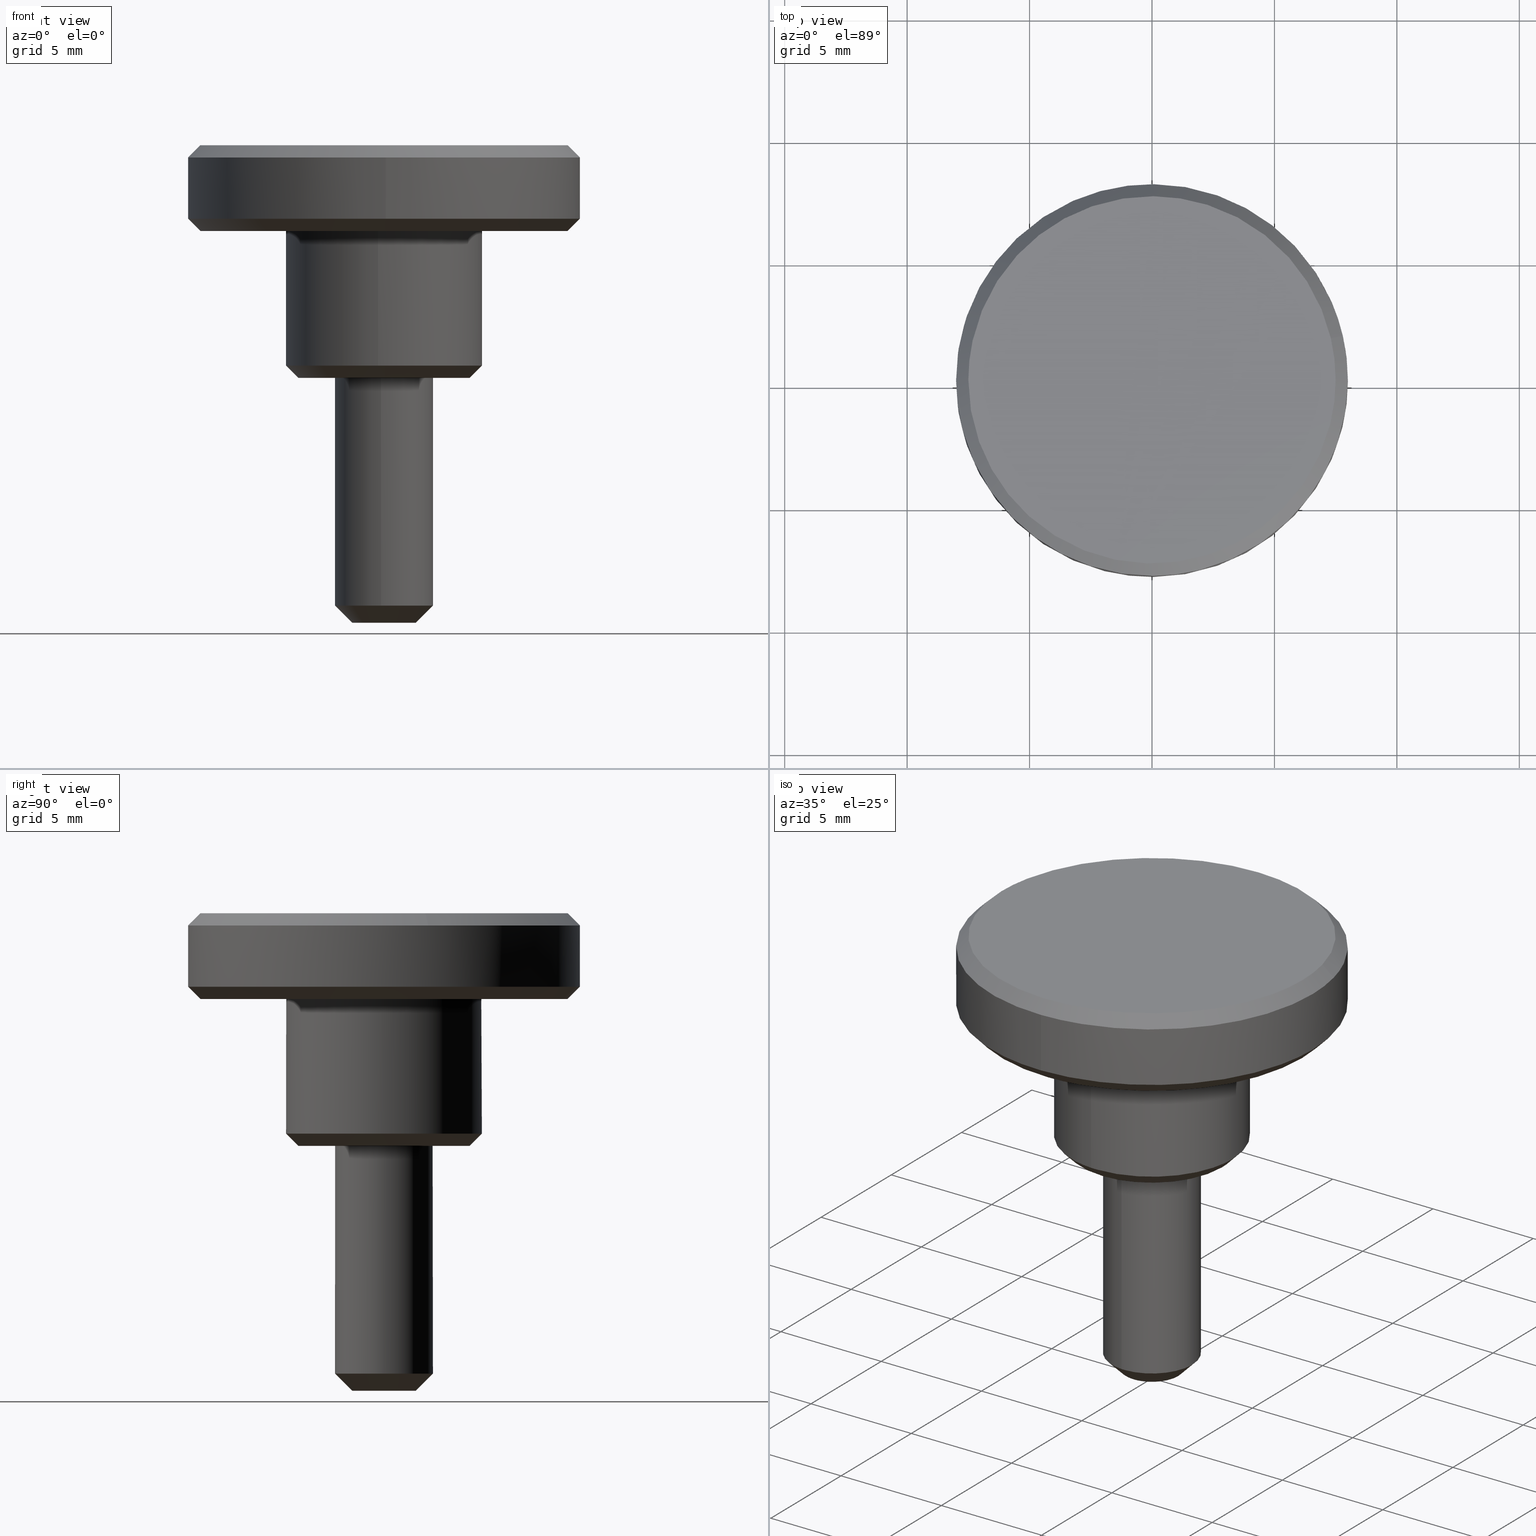
[diagram: canonical four-view strip — front | top / right | iso, engineering-drawing reading convention]
A machine part, canonical four-view strip (front | top / right | iso — engineering-drawing reading convention). The complete STEP part file that produces these views, byte-faithful:
ISO-10303-21;
HEADER;
/****************************************************************
 * Generated by software with PDE/Lib inside                    *
 * PDElib Version 4.4.1-0003, patched  Thursday August 19 11:58 *
 * International Technegroup Inc. (www.iti-oh.com)              *
 ****************************************************************/
FILE_DESCRIPTION((''),'2;1');
FILE_NAME('','2005-07-15T10:49:29',(''),(''),'','CADfix','');
FILE_SCHEMA(('AUTOMOTIVE_DESIGN'));
ENDSEC;
DATA;
#5=APPLICATION_CONTEXT('automotive design');
#6=APPLICATION_PROTOCOL_DEFINITION('Draft International Standard','automotive_design',1998,#5);
#7=PRODUCT_CONTEXT('None',#5,'mechanical');
#8=PRODUCT('knob','','None',(#7));
#9=PRODUCT_RELATED_PRODUCT_CATEGORY('part','description',(#8));
#10=PRODUCT_DEFINITION_FORMATION('None','None',#8);
#11=PRODUCT_DEFINITION_CONTEXT('part definition',#5,'design');
#12=PRODUCT_DEFINITION('None','None',#10,#11);
#18=(NAMED_UNIT(*)PLANE_ANGLE_UNIT()SI_UNIT($,.RADIAN.));
#19=DIMENSIONAL_EXPONENTS(0.0,0.0,0.0,0.0,0.0,0.0,0.0);
#20=PLANE_ANGLE_MEASURE_WITH_UNIT(PLANE_ANGLE_MEASURE(0.017453292500000),#18);
#24=(CONVERSION_BASED_UNIT('DEGREE',#20)NAMED_UNIT(#19)PLANE_ANGLE_UNIT());
#28=(NAMED_UNIT(*)SI_UNIT($,.STERADIAN.)SOLID_ANGLE_UNIT());
#32=(LENGTH_UNIT()NAMED_UNIT(*)SI_UNIT(.MILLI.,.METRE.));
#34=UNCERTAINTY_MEASURE_WITH_UNIT(LENGTH_MEASURE(0.001000000000000),#32,'DISTANCE_ACCURACY_VALUE','');
#36=(GEOMETRIC_REPRESENTATION_CONTEXT(3)GLOBAL_UNCERTAINTY_ASSIGNED_CONTEXT((#34))GLOBAL_UNIT_ASSIGNED_CONTEXT((#24,#28,#32))REPRESENTATION_CONTEXT('None','None'));
#37=AXIS2_PLACEMENT_3D('',#38,#39,#40);
#38=CARTESIAN_POINT('',(0.0,0.0,0.0));
#39=DIRECTION('',(0.0,0.0,1.0));
#40=DIRECTION('',(1.0,0.0,0.0));
#41=ADVANCED_BREP_SHAPE_REPRESENTATION('',(#37,#1279),#36);
#42=PRODUCT_DEFINITION_SHAPE('','',#12);
#43=SHAPE_DEFINITION_REPRESENTATION(#42,#41);
#44=CARTESIAN_POINT('',(-0.234856054145316,1.260812786987407,-10.017499999999721));
#45=CARTESIAN_POINT('',(-1.291833575745783,1.063925848176672,-10.017499999999721));
#46=CARTESIAN_POINT('',(-1.282451166329666,-0.011191781776663,-10.017499999999719));
#47=CARTESIAN_POINT('',(-1.271259384553003,-1.293642948106330,-10.017499999999721));
#48=CARTESIAN_POINT('',(0.011191781776663,-1.282451166329666,-10.017499999999719));
#49=CARTESIAN_POINT('',(-0.369532038020969,1.983813959720516,-9.282062499999752));
#50=CARTESIAN_POINT('',(-2.032623326515923,1.674024067255477,-9.282062499999750));
#51=CARTESIAN_POINT('',(-2.017860663123225,-0.017609603227249,-9.282062499999750));
#52=CARTESIAN_POINT('',(-2.000251059895975,-2.035470266350473,-9.282062499999750));
#53=CARTESIAN_POINT('',(0.017609603227249,-2.017860663123225,-9.282062499999750));
#61=(BOUNDED_SURFACE()B_SPLINE_SURFACE(2,1,((#44,#49),(#45,#50),(#46,#51),(#47,#52),(#48,#53)),.UNSPECIFIED.,.F.,.F.,.U.)B_SPLINE_SURFACE_WITH_KNOTS((3,2,3),(2,2),(0.0,2.942216923434708,6.285645245519604),(0.0,1.0),.UNSPECIFIED.)GEOMETRIC_REPRESENTATION_ITEM()RATIONAL_B_SPLINE_SURFACE(((0.938140952186599,0.938140952186599),(0.742253967444162,0.742253967444162),(1.0,1.0),(0.707106781186548,0.707106781186548),(1.0,1.0)))REPRESENTATION_ITEM('')SURFACE());
#62=CARTESIAN_POINT('',(-0.366247257942256,1.966179784774796,-9.299999999997844));
#63=VERTEX_POINT('',#62);
#64=CARTESIAN_POINT('',(-1.999999999999915,0.0,-9.299999999999750));
#65=VERTEX_POINT('',#64);
#66=CARTESIAN_POINT('',(-0.366247257942256,1.966179784774796,-9.299999999997844));
#67=CARTESIAN_POINT('',(-1.999999999999916,1.661854887022502,-9.299999999999752));
#68=CARTESIAN_POINT('',(-1.999999999999915,0.0,-9.299999999999750));
#76=(BOUNDED_CURVE()B_SPLINE_CURVE(2,(#66,#67,#68),.UNSPECIFIED.,.F.,.U.)B_SPLINE_CURVE_WITH_KNOTS((3,3),(0.281445263715814,0.500000000000000),.UNSPECIFIED.)CURVE()GEOMETRIC_REPRESENTATION_ITEM()RATIONAL_B_SPLINE_CURVE((0.935586817232187,0.743947199211198,1.0))REPRESENTATION_ITEM(''));
#77=EDGE_CURVE('',#63,#65,#76,.T.);
#78=ORIENTED_EDGE('',*,*,#77,.F.);
#79=CARTESIAN_POINT('',(-0.238060717697703,1.278016860101234,-9.999999999994298));
#80=VERTEX_POINT('',#79);
#81=CARTESIAN_POINT('',(-0.238060717697703,1.278016860101234,-9.999999999994298));
#82=CARTESIAN_POINT('',(-0.366247257942256,1.966179784774796,-9.299999999997844));
#83=QUASI_UNIFORM_CURVE('',1,(#81,#82),.UNSPECIFIED.,.F.,.U.);
#84=EDGE_CURVE('',#80,#63,#83,.T.);
#85=ORIENTED_EDGE('',*,*,#84,.F.);
#86=CARTESIAN_POINT('',(-1.299999999999874,0.0,-9.999999999999719));
#87=VERTEX_POINT('',#86);
#88=CARTESIAN_POINT('',(-1.299999999999874,0.0,-9.999999999999719));
#89=CARTESIAN_POINT('',(-1.299999999999874,1.080205676505269,-9.999999999999719));
#90=CARTESIAN_POINT('',(-0.238060717697703,1.278016860101234,-9.999999999994300));
#98=(BOUNDED_CURVE()B_SPLINE_CURVE(2,(#88,#89,#90),.UNSPECIFIED.,.F.,.U.)B_SPLINE_CURVE_WITH_KNOTS((3,3),(0.500000000000000,0.718554736275260),.UNSPECIFIED.)CURVE()GEOMETRIC_REPRESENTATION_ITEM()RATIONAL_B_SPLINE_CURVE((1.0,0.743947199221655,0.935586817216534))REPRESENTATION_ITEM(''));
#99=EDGE_CURVE('',#87,#80,#98,.T.);
#100=ORIENTED_EDGE('',*,*,#99,.F.);
#101=CARTESIAN_POINT('',(0.011344496234044,-1.299950499994289,-9.999999999987974));
#102=VERTEX_POINT('',#101);
#103=CARTESIAN_POINT('',(0.011344496234044,-1.299950499994289,-9.999999999987974));
#104=CARTESIAN_POINT('',(0.005672356152973,-1.299999999999874,-9.999999999999719));
#105=CARTESIAN_POINT('',(0.0,-1.299999999999874,-9.999999999999719));
#106=CARTESIAN_POINT('',(-1.299999999999874,-1.299999999999874,-9.999999999999719));
#107=CARTESIAN_POINT('',(-1.299999999999874,0.0,-9.999999999999719));
#115=(BOUNDED_CURVE()B_SPLINE_CURVE(2,(#103,#104,#105,#106,#107),.UNSPECIFIED.,.F.,.U.)B_SPLINE_CURVE_WITH_KNOTS((3,2,3),(0.248460105641692,0.250000000000000,0.500000000000000),.UNSPECIFIED.)CURVE()GEOMETRIC_REPRESENTATION_ITEM()RATIONAL_B_SPLINE_CURVE((0.996414028046434,0.998195901539049,1.0,0.707106781186548,1.0))REPRESENTATION_ITEM(''));
#116=EDGE_CURVE('',#102,#87,#115,.T.);
#117=ORIENTED_EDGE('',*,*,#116,.F.);
#118=CARTESIAN_POINT('',(0.017453071073165,-1.999923846138014,-9.299999999989328));
#119=VERTEX_POINT('',#118);
#120=CARTESIAN_POINT('',(0.011344496234044,-1.299950499994289,-9.999999999987974));
#121=CARTESIAN_POINT('',(0.017453071073165,-1.999923846138014,-9.299999999989328));
#122=QUASI_UNIFORM_CURVE('',1,(#120,#121),.UNSPECIFIED.,.F.,.U.);
#123=EDGE_CURVE('',#102,#119,#122,.T.);
#124=ORIENTED_EDGE('',*,*,#123,.T.);
#125=CARTESIAN_POINT('',(-0.122097079089674,-1.996269596842428,-9.299999999999750));
#126=VERTEX_POINT('',#125);
#127=CARTESIAN_POINT('',(-0.122097079089674,-1.996269596842428,-9.299999999999750));
#128=CARTESIAN_POINT('',(-0.061105526617197,-1.999999999999915,-9.299999999999750));
#129=CARTESIAN_POINT('',(0.0,-1.999999999999915,-9.299999999999750));
#130=CARTESIAN_POINT('',(0.008726701717733,-1.999999999999915,-9.299999999999749));
#131=CARTESIAN_POINT('',(0.017453071073165,-1.999923846138014,-9.299999999989328));
#139=(BOUNDED_CURVE()B_SPLINE_CURVE(2,(#127,#128,#129,#130,#131),.UNSPECIFIED.,.F.,.U.)B_SPLINE_CURVE_WITH_KNOTS((3,2,3),(0.739332962238517,0.750000000000000,0.751539894348432),.UNSPECIFIED.)CURVE()GEOMETRIC_REPRESENTATION_ITEM()RATIONAL_B_SPLINE_CURVE((0.976072041665805,0.987502787899338,1.0,0.998195901550621,0.996414028069291))REPRESENTATION_ITEM(''));
#140=EDGE_CURVE('',#126,#119,#139,.T.);
#141=ORIENTED_EDGE('',*,*,#140,.F.);
#142=CARTESIAN_POINT('',(-1.999999999999915,0.0,-9.299999999999750));
#143=CARTESIAN_POINT('',(-1.999999999999915,-1.881412133773602,-9.299999999999750));
#144=CARTESIAN_POINT('',(-0.122097079089674,-1.996269596842428,-9.299999999999750));
#152=(BOUNDED_CURVE()B_SPLINE_CURVE(2,(#142,#143,#144),.UNSPECIFIED.,.F.,.U.)B_SPLINE_CURVE_WITH_KNOTS((3,3),(0.500000000000000,0.739332962238517),.UNSPECIFIED.)CURVE()GEOMETRIC_REPRESENTATION_ITEM()RATIONAL_B_SPLINE_CURVE((1.0,0.719603993287210,0.976072041665804))REPRESENTATION_ITEM(''));
#153=EDGE_CURVE('',#65,#126,#152,.T.);
#154=ORIENTED_EDGE('',*,*,#153,.F.);
#155=EDGE_LOOP('',(#78,#85,#100,#117,#124,#141,#154));
#156=FACE_OUTER_BOUND('',#155,.T.);
#157=ADVANCED_FACE('',(#156),#61,.T.);
#158=CARTESIAN_POINT('',(0.011191781776663,-1.282451166329666,-10.017499999999719));
#159=CARTESIAN_POINT('',(1.293642948106330,-1.271259384553003,-10.017499999999721));
#160=CARTESIAN_POINT('',(1.282451166329666,0.011191781776663,-10.017499999999719));
#161=CARTESIAN_POINT('',(1.271259384553003,1.293642948106330,-10.017499999999721));
#162=CARTESIAN_POINT('',(-0.011191781776663,1.282451166329666,-10.017499999999719));
#163=CARTESIAN_POINT('',(-0.123975398511113,1.281466918617461,-10.017499999999719));
#164=CARTESIAN_POINT('',(-0.234856054145316,1.260812786987407,-10.017499999999721));
#165=CARTESIAN_POINT('',(0.017609603227249,-2.017860663123225,-9.282062499999750));
#166=CARTESIAN_POINT('',(2.035470266350473,-2.000251059895975,-9.282062499999750));
#167=CARTESIAN_POINT('',(2.017860663123225,0.017609603227249,-9.282062499999750));
#168=CARTESIAN_POINT('',(2.000251059895975,2.035470266350473,-9.282062499999750));
#169=CARTESIAN_POINT('',(-0.017609603227249,2.017860663123225,-9.282062499999750));
#170=CARTESIAN_POINT('',(-0.195067918700222,2.016312007865721,-9.282062499999750));
#171=CARTESIAN_POINT('',(-0.369532038020969,1.983813959720516,-9.282062499999752));
#179=(BOUNDED_SURFACE()B_SPLINE_SURFACE(2,1,((#158,#165),(#159,#166),(#160,#167),(#161,#168),(#162,#169),(#163,#170),(#164,#171)),.UNSPECIFIED.,.F.,.F.,.U.)B_SPLINE_SURFACE_WITH_KNOTS((3,2,2,3),(2,2),(0.0,3.343428322084896,6.686856644169791,7.088068042819979),(0.0,1.0),.UNSPECIFIED.)GEOMETRIC_REPRESENTATION_ITEM()RATIONAL_B_SPLINE_SURFACE(((1.0,1.0),(0.707106781186548,0.707106781186548),(1.0,1.0),(0.707106781186548,0.707106781186548),(1.0,1.0),(0.964852813742386,0.964852813742386),(0.938140952186599,0.938140952186599)))REPRESENTATION_ITEM('')SURFACE());
#180=CARTESIAN_POINT('',(0.236068469329334,1.986019052725367,-9.299999999999750));
#181=VERTEX_POINT('',#180);
#182=CARTESIAN_POINT('',(0.236068469329334,1.986019052725367,-9.299999999999750));
#183=CARTESIAN_POINT('',(0.118448239319810,1.999999999999915,-9.299999999999750));
#184=CARTESIAN_POINT('',(0.0,1.999999999999915,-9.299999999999750));
#185=CARTESIAN_POINT('',(-0.184685151875231,1.999999999999915,-9.299999999999749));
#186=CARTESIAN_POINT('',(-0.366247257942256,1.966179784774797,-9.299999999997844));
#194=(BOUNDED_CURVE()B_SPLINE_CURVE(2,(#182,#183,#184,#185,#186),.UNSPECIFIED.,.F.,.U.)B_SPLINE_CURVE_WITH_KNOTS((3,2,3),(0.229562473512951,0.250000000000000,0.281445263715814),.UNSPECIFIED.)CURVE()GEOMETRIC_REPRESENTATION_ITEM()RATIONAL_B_SPLINE_CURVE((0.956026754182606,0.976055948330492,1.0,0.963159581975350,0.935586817232187))REPRESENTATION_ITEM(''));
#195=EDGE_CURVE('',#181,#63,#194,.T.);
#196=ORIENTED_EDGE('',*,*,#195,.F.);
#197=CARTESIAN_POINT('',(1.999999999999915,0.0,-9.299999999999750));
#198=VERTEX_POINT('',#197);
#199=CARTESIAN_POINT('',(1.999999999999915,0.0,-9.299999999999750));
#200=CARTESIAN_POINT('',(1.999999999999915,1.776349051874147,-9.299999999999752));
#201=CARTESIAN_POINT('',(0.236068469329334,1.986019052725367,-9.299999999999750));
#209=(BOUNDED_CURVE()B_SPLINE_CURVE(2,(#199,#200,#201),.UNSPECIFIED.,.F.,.U.)B_SPLINE_CURVE_WITH_KNOTS((3,3),(0.0,0.229562473512951),.UNSPECIFIED.)CURVE()GEOMETRIC_REPRESENTATION_ITEM()RATIONAL_B_SPLINE_CURVE((1.0,0.731050832856056,0.956026754182606))REPRESENTATION_ITEM(''));
#210=EDGE_CURVE('',#198,#181,#209,.T.);
#211=ORIENTED_EDGE('',*,*,#210,.F.);
#212=CARTESIAN_POINT('',(0.017453071073165,-1.999923846138015,-9.299999999989328));
#213=CARTESIAN_POINT('',(1.999999999999915,-1.982622421038533,-9.299999999999749));
#214=CARTESIAN_POINT('',(1.999999999999915,0.0,-9.299999999999750));
#222=(BOUNDED_CURVE()B_SPLINE_CURVE(2,(#212,#213,#214),.UNSPECIFIED.,.F.,.U.)B_SPLINE_CURVE_WITH_KNOTS((3,3),(0.751539894348432,1.0),.UNSPECIFIED.)CURVE()GEOMETRIC_REPRESENTATION_ITEM()RATIONAL_B_SPLINE_CURVE((0.996414028069290,0.708910879635927,1.0))REPRESENTATION_ITEM(''));
#223=EDGE_CURVE('',#119,#198,#222,.T.);
#224=ORIENTED_EDGE('',*,*,#223,.F.);
#225=ORIENTED_EDGE('',*,*,#123,.F.);
#226=CARTESIAN_POINT('',(1.299999999999874,0.0,-9.999999999999719));
#227=VERTEX_POINT('',#226);
#228=CARTESIAN_POINT('',(1.299999999999874,0.0,-9.999999999999719));
#229=CARTESIAN_POINT('',(1.299999999999874,-1.288704573602715,-9.999999999999721));
#230=CARTESIAN_POINT('',(0.011344496234044,-1.299950499994289,-9.999999999987974));
#238=(BOUNDED_CURVE()B_SPLINE_CURVE(2,(#228,#229,#230),.UNSPECIFIED.,.F.,.U.)B_SPLINE_CURVE_WITH_KNOTS((3,3),(0.0,0.248460105641691),.UNSPECIFIED.)CURVE()GEOMETRIC_REPRESENTATION_ITEM()RATIONAL_B_SPLINE_CURVE((1.0,0.708910879647498,0.996414028046434))REPRESENTATION_ITEM(''));
#239=EDGE_CURVE('',#227,#102,#238,.T.);
#240=ORIENTED_EDGE('',*,*,#239,.F.);
#241=CARTESIAN_POINT('',(-0.238060717697703,1.278016860101234,-9.999999999994298));
#242=CARTESIAN_POINT('',(-0.120045348754271,1.299999999999874,-9.999999999999719));
#243=CARTESIAN_POINT('',(0.0,1.299999999999874,-9.999999999999719));
#244=CARTESIAN_POINT('',(1.299999999999874,1.299999999999874,-9.999999999999719));
#245=CARTESIAN_POINT('',(1.299999999999874,0.0,-9.999999999999719));
#253=(BOUNDED_CURVE()B_SPLINE_CURVE(2,(#241,#242,#243,#244,#245),.UNSPECIFIED.,.F.,.U.)B_SPLINE_CURVE_WITH_KNOTS((3,2,3),(0.718554736275261,0.750000000000000,1.0),.UNSPECIFIED.)CURVE()GEOMETRIC_REPRESENTATION_ITEM()RATIONAL_B_SPLINE_CURVE((0.935586817216535,0.963159581964893,1.0,0.707106781186548,1.0))REPRESENTATION_ITEM(''));
#254=EDGE_CURVE('',#80,#227,#253,.T.);
#255=ORIENTED_EDGE('',*,*,#254,.F.);
#256=ORIENTED_EDGE('',*,*,#84,.T.);
#257=EDGE_LOOP('',(#196,#211,#224,#225,#240,#255,#256));
#258=FACE_OUTER_BOUND('',#257,.T.);
#259=ADVANCED_FACE('',(#258),#179,.T.);
#260=CARTESIAN_POINT('',(0.236068469313507,1.986019052727249,-9.532499999999748));
#261=CARTESIAN_POINT('',(0.179229457275948,1.992775230897126,-9.532499999999747));
#262=CARTESIAN_POINT('',(0.122097079069709,1.996269596843649,-9.532499999999747));
#263=CARTESIAN_POINT('',(-1.874172517773940,2.118366675913357,-9.532499999999747));
#264=CARTESIAN_POINT('',(-1.996269596843649,0.122097079069709,-9.532499999999747));
#265=CARTESIAN_POINT('',(-2.118366675913357,-1.874172517773940,-9.532499999999747));
#266=CARTESIAN_POINT('',(-0.122097079069709,-1.996269596843649,-9.532499999999747));
#267=CARTESIAN_POINT('',(0.236068469313507,1.986019052727249,0.238312499999994));
#268=CARTESIAN_POINT('',(0.179229457275948,1.992775230897126,0.238312499999994));
#269=CARTESIAN_POINT('',(0.122097079069709,1.996269596843649,0.238312499999994));
#270=CARTESIAN_POINT('',(-1.874172517773940,2.118366675913357,0.238312499999994));
#271=CARTESIAN_POINT('',(-1.996269596843649,0.122097079069709,0.238312499999994));
#272=CARTESIAN_POINT('',(-2.118366675913357,-1.874172517773940,0.238312499999994));
#273=CARTESIAN_POINT('',(-0.122097079069709,-1.996269596843649,0.238312499999994));
#281=(BOUNDED_SURFACE()B_SPLINE_SURFACE(2,1,((#260,#267),(#261,#268),(#262,#269),(#263,#270),(#264,#271),(#265,#272),(#266,#273)),.UNSPECIFIED.,.F.,.F.,.U.)B_SPLINE_SURFACE_WITH_KNOTS((3,2,2,3),(2,2),(0.0,0.132548339959385,3.446256838944004,6.759965337928622),(0.0,9.770812499999742),.UNSPECIFIED.)GEOMETRIC_REPRESENTATION_ITEM()RATIONAL_B_SPLINE_SURFACE(((0.977505800795127,0.977505800795127),(0.988284271247462,0.988284271247462),(1.0,1.0),(0.707106781186548,0.707106781186548),(1.0,1.0),(0.707106781186548,0.707106781186548),(1.0,1.0)))REPRESENTATION_ITEM('')SURFACE());
#282=ORIENTED_EDGE('',*,*,#195,.T.);
#283=ORIENTED_EDGE('',*,*,#77,.T.);
#284=ORIENTED_EDGE('',*,*,#153,.T.);
#285=CARTESIAN_POINT('',(-0.122097079089674,-1.996269596842428,2.775558E-017));
#286=VERTEX_POINT('',#285);
#287=CARTESIAN_POINT('',(-0.122097079089674,-1.996269596842428,-9.299999999999750));
#288=CARTESIAN_POINT('',(-0.122097079089674,-1.996269596842428,2.775558E-017));
#289=QUASI_UNIFORM_CURVE('',1,(#287,#288),.UNSPECIFIED.,.F.,.U.);
#290=EDGE_CURVE('',#126,#286,#289,.T.);
#291=ORIENTED_EDGE('',*,*,#290,.T.);
#292=CARTESIAN_POINT('',(-1.999999999999915,0.0,0.0));
#293=VERTEX_POINT('',#292);
#294=CARTESIAN_POINT('',(-1.999999999999915,0.0,0.0));
#295=CARTESIAN_POINT('',(-1.999999999999915,-1.881412133773602,0.0));
#296=CARTESIAN_POINT('',(-0.122097079089674,-1.996269596842428,2.775558E-017));
#304=(BOUNDED_CURVE()B_SPLINE_CURVE(2,(#294,#295,#296),.UNSPECIFIED.,.F.,.U.)B_SPLINE_CURVE_WITH_KNOTS((3,3),(0.500000000000000,0.739332962238517),.UNSPECIFIED.)CURVE()GEOMETRIC_REPRESENTATION_ITEM()RATIONAL_B_SPLINE_CURVE((1.0,0.719603993287210,0.976072041665804))REPRESENTATION_ITEM(''));
#305=EDGE_CURVE('',#293,#286,#304,.T.);
#306=ORIENTED_EDGE('',*,*,#305,.F.);
#307=CARTESIAN_POINT('',(0.236068469329334,1.986019052725367,1.419714E-017));
#308=VERTEX_POINT('',#307);
#309=CARTESIAN_POINT('',(0.236068469329334,1.986019052725367,1.419714E-017));
#310=CARTESIAN_POINT('',(0.118448239319809,1.999999999999915,0.0));
#311=CARTESIAN_POINT('',(0.0,1.999999999999915,0.0));
#312=CARTESIAN_POINT('',(-1.999999999999915,1.999999999999915,0.0));
#313=CARTESIAN_POINT('',(-1.999999999999915,0.0,0.0));
#321=(BOUNDED_CURVE()B_SPLINE_CURVE(2,(#309,#310,#311,#312,#313),.UNSPECIFIED.,.F.,.U.)B_SPLINE_CURVE_WITH_KNOTS((3,2,3),(0.229562473512951,0.250000000000000,0.500000000000000),.UNSPECIFIED.)CURVE()GEOMETRIC_REPRESENTATION_ITEM()RATIONAL_B_SPLINE_CURVE((0.956026754182606,0.976055948330492,1.0,0.707106781186548,1.0))REPRESENTATION_ITEM(''));
#322=EDGE_CURVE('',#308,#293,#321,.T.);
#323=ORIENTED_EDGE('',*,*,#322,.F.);
#324=CARTESIAN_POINT('',(0.236068469329334,1.986019052725367,-9.299999999999750));
#325=CARTESIAN_POINT('',(0.236068469329334,1.986019052725367,1.419714E-017));
#326=QUASI_UNIFORM_CURVE('',1,(#324,#325),.UNSPECIFIED.,.F.,.U.);
#327=EDGE_CURVE('',#181,#308,#326,.T.);
#328=ORIENTED_EDGE('',*,*,#327,.F.);
#329=EDGE_LOOP('',(#282,#283,#284,#291,#306,#323,#328));
#330=FACE_OUTER_BOUND('',#329,.T.);
#331=ADVANCED_FACE('',(#330),#281,.T.);
#332=CARTESIAN_POINT('',(-0.122097079069709,-1.996269596843649,-9.532499999999747));
#333=CARTESIAN_POINT('',(1.874172517773940,-2.118366675913357,-9.532499999999747));
#334=CARTESIAN_POINT('',(1.996269596843649,-0.122097079069709,-9.532499999999747));
#335=CARTESIAN_POINT('',(2.111572393464965,1.763086981678927,-9.532499999999747));
#336=CARTESIAN_POINT('',(0.236068469313507,1.986019052727249,-9.532499999999748));
#337=CARTESIAN_POINT('',(-0.122097079069709,-1.996269596843649,0.238312499999994));
#338=CARTESIAN_POINT('',(1.874172517773940,-2.118366675913357,0.238312499999994));
#339=CARTESIAN_POINT('',(1.996269596843649,-0.122097079069709,0.238312499999994));
#340=CARTESIAN_POINT('',(2.111572393464965,1.763086981678927,0.238312499999994));
#341=CARTESIAN_POINT('',(0.236068469313507,1.986019052727249,0.238312499999994));
#349=(BOUNDED_SURFACE()B_SPLINE_SURFACE(2,1,((#332,#337),(#333,#338),(#334,#339),(#335,#340),(#336,#341)),.UNSPECIFIED.,.F.,.F.,.U.)B_SPLINE_SURFACE_WITH_KNOTS((3,2,3),(2,2),(0.0,3.313708498984619,6.494868658009852),(0.0,9.770812499999742),.UNSPECIFIED.)GEOMETRIC_REPRESENTATION_ITEM()RATIONAL_B_SPLINE_SURFACE(((1.0,1.0),(0.707106781186548,0.707106781186548),(1.0,1.0),(0.718822509939086,0.718822509939086),(0.977505800795127,0.977505800795127)))REPRESENTATION_ITEM('')SURFACE());
#350=ORIENTED_EDGE('',*,*,#210,.T.);
#351=ORIENTED_EDGE('',*,*,#327,.T.);
#352=CARTESIAN_POINT('',(1.999999999999915,0.0,0.0));
#353=VERTEX_POINT('',#352);
#354=CARTESIAN_POINT('',(1.999999999999915,0.0,0.0));
#355=CARTESIAN_POINT('',(1.999999999999915,1.776349051874147,0.0));
#356=CARTESIAN_POINT('',(0.236068469329334,1.986019052725367,1.419714E-017));
#364=(BOUNDED_CURVE()B_SPLINE_CURVE(2,(#354,#355,#356),.UNSPECIFIED.,.F.,.U.)B_SPLINE_CURVE_WITH_KNOTS((3,3),(0.0,0.229562473512951),.UNSPECIFIED.)CURVE()GEOMETRIC_REPRESENTATION_ITEM()RATIONAL_B_SPLINE_CURVE((1.0,0.731050832856056,0.956026754182606))REPRESENTATION_ITEM(''));
#365=EDGE_CURVE('',#353,#308,#364,.T.);
#366=ORIENTED_EDGE('',*,*,#365,.F.);
#367=CARTESIAN_POINT('',(-0.122097079089674,-1.996269596842428,2.775558E-017));
#368=CARTESIAN_POINT('',(-0.061105526617197,-1.999999999999915,0.0));
#369=CARTESIAN_POINT('',(0.0,-1.999999999999915,0.0));
#370=CARTESIAN_POINT('',(1.999999999999915,-1.999999999999915,0.0));
#371=CARTESIAN_POINT('',(1.999999999999915,0.0,0.0));
#379=(BOUNDED_CURVE()B_SPLINE_CURVE(2,(#367,#368,#369,#370,#371),.UNSPECIFIED.,.F.,.U.)B_SPLINE_CURVE_WITH_KNOTS((3,2,3),(0.739332962238517,0.750000000000000,1.0),.UNSPECIFIED.)CURVE()GEOMETRIC_REPRESENTATION_ITEM()RATIONAL_B_SPLINE_CURVE((0.976072041665805,0.987502787899338,1.0,0.707106781186548,1.0))REPRESENTATION_ITEM(''));
#380=EDGE_CURVE('',#286,#353,#379,.T.);
#381=ORIENTED_EDGE('',*,*,#380,.F.);
#382=ORIENTED_EDGE('',*,*,#290,.F.);
#383=ORIENTED_EDGE('',*,*,#140,.T.);
#384=ORIENTED_EDGE('',*,*,#223,.T.);
#385=EDGE_LOOP('',(#350,#351,#366,#381,#382,#383,#384));
#386=FACE_OUTER_BOUND('',#385,.T.);
#387=ADVANCED_FACE('',(#386),#349,.T.);
#388=CARTESIAN_POINT('',(7.294458421924698,1.689240237743507,9.512499999999999));
#389=CARTESIAN_POINT('',(7.494970729498896,0.823390219490366,9.512500000000001));
#390=CARTESIAN_POINT('',(7.487214898942977,-0.065339934544074,9.512500000000001));
#391=CARTESIAN_POINT('',(7.421874964398903,-7.552554833487053,9.512500000000001));
#392=CARTESIAN_POINT('',(-0.065339934544074,-7.487214898942977,9.512500000000001));
#393=CARTESIAN_POINT('',(-7.552554833487053,-7.421874964398903,9.512500000000001));
#394=CARTESIAN_POINT('',(-7.487214898942977,0.065339934544074,9.512500000000001));
#395=CARTESIAN_POINT('',(-7.421874964398903,7.552554833487053,9.512500000000001));
#396=CARTESIAN_POINT('',(0.065339934544074,7.487214898942977,9.512500000000001));
#397=CARTESIAN_POINT('',(7.806227395516387,1.807754963939131,8.987187499999997));
#398=CARTESIAN_POINT('',(8.020807365404117,0.881158122619058,8.987187499999997));
#399=CARTESIAN_POINT('',(8.012507396652685,-0.069924092723065,8.987187499999997));
#400=CARTESIAN_POINT('',(7.942583303929622,-8.082431489375750,8.987187499999997));
#401=CARTESIAN_POINT('',(-0.069924092723065,-8.012507396652685,8.987187499999997));
#402=CARTESIAN_POINT('',(-8.082431489375750,-7.942583303929622,8.987187499999997));
#403=CARTESIAN_POINT('',(-8.012507396652685,0.069924092723065,8.987187499999997));
#404=CARTESIAN_POINT('',(-7.942583303929622,8.082431489375750,8.987187499999997));
#405=CARTESIAN_POINT('',(0.069924092723065,8.012507396652685,8.987187499999997));
#413=(BOUNDED_SURFACE()B_SPLINE_SURFACE(2,1,((#388,#397),(#389,#398),(#390,#399),(#391,#400),(#392,#401),(#393,#402),(#394,#403),(#395,#404),(#396,#405)),.UNSPECIFIED.,.F.,.F.,.U.)B_SPLINE_SURFACE_WITH_KNOTS((3,2,2,2,3),(2,2),(0.0,2.124169990561722,15.400232431572480,28.676294872583231,41.952357313593993),(0.0,1.0),.UNSPECIFIED.)GEOMETRIC_REPRESENTATION_ITEM()RATIONAL_B_SPLINE_SURFACE(((0.921270302782944,0.921270302782944),(0.953137084989848,0.953137084989848),(1.0,1.0),(0.707106781186548,0.707106781186548),(1.0,1.0),(0.707106781186548,0.707106781186548),(1.0,1.0),(0.707106781186548,0.707106781186548),(1.0,1.0)))REPRESENTATION_ITEM('')SURFACE());
#414=CARTESIAN_POINT('',(7.793745225428451,1.804864360863774,8.999999999999716));
#415=VERTEX_POINT('',#414);
#416=CARTESIAN_POINT('',(8.0,0.0,9.0));
#417=VERTEX_POINT('',#416);
#418=CARTESIAN_POINT('',(7.793745225428451,1.804864360863774,8.999999999999716));
#419=CARTESIAN_POINT('',(8.0,0.914217285440538,9.000000000000002));
#420=CARTESIAN_POINT('',(8.0,0.0,9.0));
#428=(BOUNDED_CURVE()B_SPLINE_CURVE(2,(#418,#419,#420),.UNSPECIFIED.,.F.,.U.)B_SPLINE_CURVE_WITH_KNOTS((3,3),(0.961422971784503,1.0),.UNSPECIFIED.)CURVE()GEOMETRIC_REPRESENTATION_ITEM()RATIONAL_B_SPLINE_CURVE((0.923556557442613,0.954804200134823,1.0))REPRESENTATION_ITEM(''));
#429=EDGE_CURVE('',#415,#417,#428,.T.);
#430=ORIENTED_EDGE('',*,*,#429,.F.);
#431=CARTESIAN_POINT('',(7.306636148837393,1.692060338325327,9.499999999997934));
#432=VERTEX_POINT('',#431);
#433=CARTESIAN_POINT('',(7.306636148837393,1.692060338325327,9.499999999997934));
#434=CARTESIAN_POINT('',(7.793745225428451,1.804864360863774,8.999999999999716));
#435=QUASI_UNIFORM_CURVE('',1,(#433,#434),.UNSPECIFIED.,.F.,.U.);
#436=EDGE_CURVE('',#432,#415,#435,.T.);
#437=ORIENTED_EDGE('',*,*,#436,.F.);
#438=CARTESIAN_POINT('',(7.500000000000000,0.0,9.500000000000000));
#439=VERTEX_POINT('',#438);
#440=CARTESIAN_POINT('',(7.500000000000000,0.0,9.500000000000000));
#441=CARTESIAN_POINT('',(7.500000000000000,0.857078705116250,9.500000000000000));
#442=CARTESIAN_POINT('',(7.306636148837394,1.692060338325327,9.499999999997934));
#450=(BOUNDED_CURVE()B_SPLINE_CURVE(2,(#440,#441,#442),.UNSPECIFIED.,.F.,.U.)B_SPLINE_CURVE_WITH_KNOTS((3,3),(0.500000000000000,0.538577028216173),.UNSPECIFIED.)CURVE()GEOMETRIC_REPRESENTATION_ITEM()RATIONAL_B_SPLINE_CURVE((1.0,0.954804200134030,0.923556557441517))REPRESENTATION_ITEM(''));
#451=EDGE_CURVE('',#439,#432,#450,.T.);
#452=ORIENTED_EDGE('',*,*,#451,.F.);
#453=CARTESIAN_POINT('',(-7.500000000000000,0.0,9.500000000000000));
#454=VERTEX_POINT('',#453);
#455=CARTESIAN_POINT('',(-7.500000000000000,0.0,9.500000000000000));
#456=CARTESIAN_POINT('',(-7.500000000000000,-7.500000000000000,9.500000000000000));
#457=CARTESIAN_POINT('',(0.0,-7.500000000000000,9.500000000000000));
#458=CARTESIAN_POINT('',(7.500000000000000,-7.500000000000000,9.500000000000000));
#459=CARTESIAN_POINT('',(7.500000000000000,0.0,9.500000000000000));
#467=(BOUNDED_CURVE()B_SPLINE_CURVE(2,(#455,#456,#457,#458,#459),.UNSPECIFIED.,.F.,.U.)B_SPLINE_CURVE_WITH_KNOTS((3,2,3),(0.0,0.250000000000000,0.500000000000000),.UNSPECIFIED.)CURVE()GEOMETRIC_REPRESENTATION_ITEM()RATIONAL_B_SPLINE_CURVE((1.0,0.707106781186547,1.0,0.707106781186547,1.0))REPRESENTATION_ITEM(''));
#468=EDGE_CURVE('',#454,#439,#467,.T.);
#469=ORIENTED_EDGE('',*,*,#468,.F.);
#470=CARTESIAN_POINT('',(0.065449016255905,7.499714422983589,9.499999999997538));
#471=VERTEX_POINT('',#470);
#472=CARTESIAN_POINT('',(0.065449016255905,7.499714422983589,9.499999999997538));
#473=CARTESIAN_POINT('',(0.032725131173342,7.500000000000000,9.500000000000000));
#474=CARTESIAN_POINT('',(0.0,7.500000000000000,9.500000000000000));
#475=CARTESIAN_POINT('',(-7.500000000000000,7.500000000000000,9.500000000000000));
#476=CARTESIAN_POINT('',(-7.500000000000000,0.0,9.500000000000000));
#484=(BOUNDED_CURVE()B_SPLINE_CURVE(2,(#472,#473,#474,#475,#476),.UNSPECIFIED.,.F.,.U.)B_SPLINE_CURVE_WITH_KNOTS((3,2,3),(0.748460105664164,0.750000000000000,1.0),.UNSPECIFIED.)CURVE()GEOMETRIC_REPRESENTATION_ITEM()RATIONAL_B_SPLINE_CURVE((0.996414028098440,0.998195901565377,1.0,0.707106781186547,1.0))REPRESENTATION_ITEM(''));
#485=EDGE_CURVE('',#471,#454,#484,.T.);
#486=ORIENTED_EDGE('',*,*,#485,.F.);
#487=CARTESIAN_POINT('',(0.069812284012937,7.999695384516684,8.999999999996486));
#488=VERTEX_POINT('',#487);
#489=CARTESIAN_POINT('',(0.065449016255905,7.499714422983589,9.499999999997538));
#490=CARTESIAN_POINT('',(0.069812284012937,7.999695384516684,8.999999999996486));
#491=QUASI_UNIFORM_CURVE('',1,(#489,#490),.UNSPECIFIED.,.F.,.U.);
#492=EDGE_CURVE('',#471,#488,#491,.T.);
#493=ORIENTED_EDGE('',*,*,#492,.T.);
#494=CARTESIAN_POINT('',(-0.993019672289672,7.938130254060242,8.999999999999979));
#495=VERTEX_POINT('',#494);
#496=CARTESIAN_POINT('',(-0.993019672289672,7.938130254060242,8.999999999999979));
#497=CARTESIAN_POINT('',(-0.498437222665701,8.0,9.0));
#498=CARTESIAN_POINT('',(0.0,8.0,9.0));
#499=CARTESIAN_POINT('',(0.034906806591514,8.0,8.999999999999998));
#500=CARTESIAN_POINT('',(0.069812284012937,7.999695384516684,8.999999999996486));
#508=(BOUNDED_CURVE()B_SPLINE_CURVE(2,(#496,#497,#498,#499,#500),.UNSPECIFIED.,.F.,.U.)B_SPLINE_CURVE_WITH_KNOTS((3,2,3),(0.728526163325193,0.750000000000000,0.751539894336128),.UNSPECIFIED.)CURVE()GEOMETRIC_REPRESENTATION_ITEM()RATIONAL_B_SPLINE_CURVE((0.954005609385446,0.974841835424165,1.0,0.998195901565036,0.996414028097766))REPRESENTATION_ITEM(''));
#509=EDGE_CURVE('',#495,#488,#508,.T.);
#510=ORIENTED_EDGE('',*,*,#509,.F.);
#511=CARTESIAN_POINT('',(-8.0,0.0,9.0));
#512=VERTEX_POINT('',#511);
#513=CARTESIAN_POINT('',(-8.0,0.0,9.0));
#514=CARTESIAN_POINT('',(-8.0,7.061592695962787,9.000000000000004));
#515=CARTESIAN_POINT('',(-0.993019672289672,7.938130254060242,8.999999999999979));
#523=(BOUNDED_CURVE()B_SPLINE_CURVE(2,(#513,#514,#515),.UNSPECIFIED.,.F.,.U.)B_SPLINE_CURVE_WITH_KNOTS((3,3),(0.500000000000000,0.728526163325193),.UNSPECIFIED.)CURVE()GEOMETRIC_REPRESENTATION_ITEM()RATIONAL_B_SPLINE_CURVE((1.0,0.732264945762382,0.954005609385446))REPRESENTATION_ITEM(''));
#524=EDGE_CURVE('',#512,#495,#523,.T.);
#525=ORIENTED_EDGE('',*,*,#524,.F.);
#526=CARTESIAN_POINT('',(0.069806298894195,-7.999695436740004,9.000000000000018));
#527=VERTEX_POINT('',#526);
#528=CARTESIAN_POINT('',(0.069806298894195,-7.999695436740004,9.000000000000018));
#529=CARTESIAN_POINT('',(0.034903813848311,-8.0,9.0));
#530=CARTESIAN_POINT('',(0.0,-8.0,9.0));
#531=CARTESIAN_POINT('',(-8.0,-8.0,9.000000000000002));
#532=CARTESIAN_POINT('',(-8.0,0.0,9.0));
#540=(BOUNDED_CURVE()B_SPLINE_CURVE(2,(#528,#529,#530,#531,#532),.UNSPECIFIED.,.F.,.U.)B_SPLINE_CURVE_WITH_KNOTS((3,2,3),(0.248460237448910,0.250000000000000,0.500000000000000),.UNSPECIFIED.)CURVE()GEOMETRIC_REPRESENTATION_ITEM()RATIONAL_B_SPLINE_CURVE((0.996414333085429,0.998196055960811,1.0,0.707106781186548,1.0))REPRESENTATION_ITEM(''));
#541=EDGE_CURVE('',#527,#512,#540,.T.);
#542=ORIENTED_EDGE('',*,*,#541,.F.);
#543=CARTESIAN_POINT('',(8.0,0.0,9.0));
#544=CARTESIAN_POINT('',(8.0,-7.930495618303428,9.0));
#545=CARTESIAN_POINT('',(0.069806298894195,-7.999695436740004,9.000000000000018));
#553=(BOUNDED_CURVE()B_SPLINE_CURVE(2,(#543,#544,#545),.UNSPECIFIED.,.F.,.U.)B_SPLINE_CURVE_WITH_KNOTS((3,3),(0.0,0.248460237448910),.UNSPECIFIED.)CURVE()GEOMETRIC_REPRESENTATION_ITEM()RATIONAL_B_SPLINE_CURVE((1.0,0.708910725225736,0.996414333085429))REPRESENTATION_ITEM(''));
#554=EDGE_CURVE('',#417,#527,#553,.T.);
#555=ORIENTED_EDGE('',*,*,#554,.F.);
#556=EDGE_LOOP('',(#430,#437,#452,#469,#486,#493,#510,#525,#542,#555));
#557=FACE_OUTER_BOUND('',#556,.T.);
#558=ADVANCED_FACE('',(#557),#413,.T.);
#559=CARTESIAN_POINT('',(0.065339934544074,7.487214898942977,9.512500000000001));
#560=CARTESIAN_POINT('',(5.963692058399673,7.435740759774748,9.512500000000001));
#561=CARTESIAN_POINT('',(7.294458421924698,1.689240237743507,9.512499999999999));
#562=CARTESIAN_POINT('',(0.069924092723065,8.012507396652685,8.987187499999997));
#563=CARTESIAN_POINT('',(6.382096330109651,7.957421904064514,8.987187499999997));
#564=CARTESIAN_POINT('',(7.806227395516387,1.807754963939131,8.987187499999997));
#572=(BOUNDED_SURFACE()B_SPLINE_SURFACE(2,1,((#559,#562),(#560,#563),(#561,#564)),.UNSPECIFIED.,.F.,.F.,.U.)B_SPLINE_SURFACE_WITH_KNOTS((3,3),(2,2),(0.0,11.103124578239370),(0.0,1.0),.UNSPECIFIED.)GEOMETRIC_REPRESENTATION_ITEM()RATIONAL_B_SPLINE_SURFACE(((1.0,1.0),(0.753969696196700,0.753969696196700),(0.921270302782944,0.921270302782944)))REPRESENTATION_ITEM('')SURFACE());
#573=CARTESIAN_POINT('',(0.069812284012937,7.999695384516684,8.999999999996486));
#574=CARTESIAN_POINT('',(6.371891347878014,7.944697973675051,9.0));
#575=CARTESIAN_POINT('',(7.793745225428451,1.804864360863774,8.999999999999716));
#583=(BOUNDED_CURVE()B_SPLINE_CURVE(2,(#573,#574,#575),.UNSPECIFIED.,.F.,.U.)B_SPLINE_CURVE_WITH_KNOTS((3,3),(0.751539894336128,0.961422971784502),.UNSPECIFIED.)CURVE()GEOMETRIC_REPRESENTATION_ITEM()RATIONAL_B_SPLINE_CURVE((0.996414028097765,0.753549905436857,0.923556557442612))REPRESENTATION_ITEM(''));
#584=EDGE_CURVE('',#488,#415,#583,.T.);
#585=ORIENTED_EDGE('',*,*,#584,.F.);
#586=ORIENTED_EDGE('',*,*,#492,.F.);
#587=CARTESIAN_POINT('',(7.306636148837393,1.692060338325327,9.499999999997934));
#588=CARTESIAN_POINT('',(5.973648138608220,7.448154350330379,9.500000000000000));
#589=CARTESIAN_POINT('',(0.065449016255905,7.499714422983589,9.499999999997538));
#597=(BOUNDED_CURVE()B_SPLINE_CURVE(2,(#587,#588,#589),.UNSPECIFIED.,.F.,.U.)B_SPLINE_CURVE_WITH_KNOTS((3,3),(0.538577028216173,0.748460105664163),.UNSPECIFIED.)CURVE()GEOMETRIC_REPRESENTATION_ITEM()RATIONAL_B_SPLINE_CURVE((0.923556557441517,0.753549905437403,0.996414028098439))REPRESENTATION_ITEM(''));
#598=EDGE_CURVE('',#432,#471,#597,.T.);
#599=ORIENTED_EDGE('',*,*,#598,.F.);
#600=ORIENTED_EDGE('',*,*,#436,.T.);
#601=EDGE_LOOP('',(#585,#586,#599,#600));
#602=FACE_OUTER_BOUND('',#601,.T.);
#603=ADVANCED_FACE('',(#602),#572,.T.);
#604=CARTESIAN_POINT('',(3.026563047009186,6.848545274178859,5.987499999999998));
#605=CARTESIAN_POINT('',(1.549484936269210,7.501307262095740,5.987499999999998));
#606=CARTESIAN_POINT('',(-0.065339934544074,7.487214898942923,5.987499999999999));
#607=CARTESIAN_POINT('',(-7.552554833486997,7.421874964398849,5.987500000000000));
#608=CARTESIAN_POINT('',(-7.487214898942923,-0.065339934544074,5.987499999999999));
#609=CARTESIAN_POINT('',(-7.421874964398849,-7.552554833486997,5.987500000000000));
#610=CARTESIAN_POINT('',(0.065339934544074,-7.487214898942923,5.987499999999999));
#611=CARTESIAN_POINT('',(3.238902466125340,7.329029606645305,6.512812500000002));
#612=CARTESIAN_POINT('',(1.658194626497459,8.027588460242001,6.512812500000002));
#613=CARTESIAN_POINT('',(-0.069924092723064,8.012507396652628,6.512812500000001));
#614=CARTESIAN_POINT('',(-8.082431489375692,7.942583303929566,6.512812500000001));
#615=CARTESIAN_POINT('',(-8.012507396652628,-0.069924092723064,6.512812500000001));
#616=CARTESIAN_POINT('',(-7.942583303929566,-8.082431489375692,6.512812500000001));
#617=CARTESIAN_POINT('',(0.069924092723064,-8.012507396652628,6.512812500000001));
#625=(BOUNDED_SURFACE()B_SPLINE_SURFACE(2,1,((#604,#611),(#605,#612),(#606,#613),(#607,#614),(#608,#615),(#609,#616),(#610,#617)),.UNSPECIFIED.,.F.,.F.,.U.)B_SPLINE_SURFACE_WITH_KNOTS((3,2,2,3),(2,2),(0.0,3.717297483482986,16.993359924493650,30.269422365504312),(0.0,1.0),.UNSPECIFIED.)GEOMETRIC_REPRESENTATION_ITEM()RATIONAL_B_SPLINE_SURFACE(((0.881905454174416,0.881905454174416),(0.917989898732233,0.917989898732233),(1.0,1.0),(0.707106781186548,0.707106781186548),(1.0,1.0),(0.707106781186548,0.707106781186548),(1.0,1.0)))REPRESENTATION_ITEM('')SURFACE());
#626=CARTESIAN_POINT('',(3.233723455905443,7.317310476584305,6.500000000000218));
#627=VERTEX_POINT('',#626);
#628=CARTESIAN_POINT('',(-0.993020557150740,7.938130143369020,6.500000000000000));
#629=VERTEX_POINT('',#628);
#630=CARTESIAN_POINT('',(3.233723455905442,7.317310476584305,6.500000000000218));
#631=CARTESIAN_POINT('',(1.688924938017753,8.0,6.500000000000000));
#632=CARTESIAN_POINT('',(0.0,8.0,6.500000000000000));
#633=CARTESIAN_POINT('',(-0.498437670275357,8.0,6.499999999999999));
#634=CARTESIAN_POINT('',(-0.993020557150740,7.938130143369020,6.500000000000000));
#642=(BOUNDED_CURVE()B_SPLINE_CURVE(2,(#630,#631,#632,#633,#634),.UNSPECIFIED.,.F.,.U.)B_SPLINE_CURVE_WITH_KNOTS((3,2,3),(0.181361578459833,0.250000000000000,0.271473855473722),.UNSPECIFIED.)CURVE()GEOMETRIC_REPRESENTATION_ITEM()RATIONAL_B_SPLINE_CURVE((0.883326595751779,0.919585087123303,1.0,0.974841813399867,0.954005572903991))REPRESENTATION_ITEM(''));
#643=EDGE_CURVE('',#627,#629,#642,.T.);
#644=ORIENTED_EDGE('',*,*,#643,.F.);
#645=CARTESIAN_POINT('',(3.031615739919216,6.859978571795065,6.000000000000922));
#646=VERTEX_POINT('',#645);
#647=CARTESIAN_POINT('',(3.031615739919216,6.859978571795065,6.000000000000922));
#648=CARTESIAN_POINT('',(3.233723455905443,7.317310476584305,6.500000000000218));
#649=QUASI_UNIFORM_CURVE('',1,(#647,#648),.UNSPECIFIED.,.F.,.U.);
#650=EDGE_CURVE('',#646,#627,#649,.T.);
#651=ORIENTED_EDGE('',*,*,#650,.F.);
#652=CARTESIAN_POINT('',(-7.500000000000000,0.0,6.0));
#653=VERTEX_POINT('',#652);
#654=CARTESIAN_POINT('',(-7.500000000000000,0.0,6.0));
#655=CARTESIAN_POINT('',(-7.500000000000000,7.500000000000000,6.0));
#656=CARTESIAN_POINT('',(0.0,7.500000000000000,6.0));
#657=CARTESIAN_POINT('',(1.583367129400306,7.500000000000000,6.000000000000002));
#658=CARTESIAN_POINT('',(3.031615739919216,6.859978571795065,6.000000000000922));
#666=(BOUNDED_CURVE()B_SPLINE_CURVE(2,(#654,#655,#656,#657,#658),.UNSPECIFIED.,.F.,.U.)B_SPLINE_CURVE_WITH_KNOTS((3,2,3),(0.0,0.250000000000000,0.318638421540512),.UNSPECIFIED.)CURVE()GEOMETRIC_REPRESENTATION_ITEM()RATIONAL_B_SPLINE_CURVE((1.0,0.707106781186547,1.0,0.919585087122899,0.883326595751414))REPRESENTATION_ITEM(''));
#667=EDGE_CURVE('',#653,#646,#666,.T.);
#668=ORIENTED_EDGE('',*,*,#667,.F.);
#669=CARTESIAN_POINT('',(0.065449016255902,-7.499714422983574,6.000000000002476));
#670=VERTEX_POINT('',#669);
#671=CARTESIAN_POINT('',(0.065449016255902,-7.499714422983574,6.000000000002476));
#672=CARTESIAN_POINT('',(0.032725131173339,-7.500000000000001,6.0));
#673=CARTESIAN_POINT('',(0.0,-7.500000000000000,6.0));
#674=CARTESIAN_POINT('',(-7.500000000000000,-7.500000000000000,6.0));
#675=CARTESIAN_POINT('',(-7.500000000000000,0.0,6.0));
#683=(BOUNDED_CURVE()B_SPLINE_CURVE(2,(#671,#672,#673,#674,#675),.UNSPECIFIED.,.F.,.U.)B_SPLINE_CURVE_WITH_KNOTS((3,2,3),(0.748460105664164,0.750000000000000,1.0),.UNSPECIFIED.)CURVE()GEOMETRIC_REPRESENTATION_ITEM()RATIONAL_B_SPLINE_CURVE((0.996414028098441,0.998195901565377,1.0,0.707106781186547,1.0))REPRESENTATION_ITEM(''));
#684=EDGE_CURVE('',#670,#653,#683,.T.);
#685=ORIENTED_EDGE('',*,*,#684,.F.);
#686=CARTESIAN_POINT('',(0.069809143826576,-7.999695411913436,6.499999999998768));
#687=VERTEX_POINT('',#686);
#688=CARTESIAN_POINT('',(0.065449016255902,-7.499714422983574,6.000000000002476));
#689=CARTESIAN_POINT('',(0.069809143826576,-7.999695411913436,6.499999999998768));
#690=QUASI_UNIFORM_CURVE('',1,(#688,#689),.UNSPECIFIED.,.F.,.U.);
#691=EDGE_CURVE('',#670,#687,#690,.T.);
#692=ORIENTED_EDGE('',*,*,#691,.T.);
#693=CARTESIAN_POINT('',(-8.0,0.0,6.500000000000000));
#694=VERTEX_POINT('',#693);
#695=CARTESIAN_POINT('',(-8.0,0.0,6.500000000000000));
#696=CARTESIAN_POINT('',(-8.0,-8.0,6.500000000000001));
#697=CARTESIAN_POINT('',(0.0,-8.0,6.500000000000000));
#698=CARTESIAN_POINT('',(0.034905236395741,-8.0,6.500000000000002));
#699=CARTESIAN_POINT('',(0.069809143826576,-7.999695411913436,6.499999999998768));
#707=(BOUNDED_CURVE()B_SPLINE_CURVE(2,(#695,#696,#697,#698,#699),.UNSPECIFIED.,.F.,.U.)B_SPLINE_CURVE_WITH_KNOTS((3,2,3),(0.500000000000000,0.750000000000000,0.751539825192777),.UNSPECIFIED.)CURVE()GEOMETRIC_REPRESENTATION_ITEM()RATIONAL_B_SPLINE_CURVE((1.0,0.707106781186548,1.0,0.998195982571510,0.996414188114897))REPRESENTATION_ITEM(''));
#708=EDGE_CURVE('',#694,#687,#707,.T.);
#709=ORIENTED_EDGE('',*,*,#708,.F.);
#710=CARTESIAN_POINT('',(-0.993020557150740,7.938130143369020,6.500000000000000));
#711=CARTESIAN_POINT('',(-8.0,7.061591902674117,6.500000000000002));
#712=CARTESIAN_POINT('',(-8.0,0.0,6.500000000000000));
#720=(BOUNDED_CURVE()B_SPLINE_CURVE(2,(#710,#711,#712),.UNSPECIFIED.,.F.,.U.)B_SPLINE_CURVE_WITH_KNOTS((3,3),(0.271473855473722,0.500000000000000),.UNSPECIFIED.)CURVE()GEOMETRIC_REPRESENTATION_ITEM()RATIONAL_B_SPLINE_CURVE((0.954005572903991,0.732264967786681,1.0))REPRESENTATION_ITEM(''));
#721=EDGE_CURVE('',#629,#694,#720,.T.);
#722=ORIENTED_EDGE('',*,*,#721,.F.);
#723=EDGE_LOOP('',(#644,#651,#668,#685,#692,#709,#722));
#724=FACE_OUTER_BOUND('',#723,.T.);
#725=ADVANCED_FACE('',(#724),#625,.T.);
#726=CARTESIAN_POINT('',(0.065339934544074,-7.487214898942923,5.987499999999999));
#727=CARTESIAN_POINT('',(7.552554833486997,-7.421874964398849,5.987500000000000));
#728=CARTESIAN_POINT('',(7.487214898942923,0.065339934544074,5.987499999999999));
#729=CARTESIAN_POINT('',(7.445059339336359,4.895888605305786,5.987499999999998));
#730=CARTESIAN_POINT('',(3.026563047009186,6.848545274178859,5.987499999999998));
#731=CARTESIAN_POINT('',(0.069924092723064,-8.012507396652628,6.512812500000001));
#732=CARTESIAN_POINT('',(8.082431489375692,-7.942583303929566,6.512812500000001));
#733=CARTESIAN_POINT('',(8.012507396652628,0.069924092723064,6.512812500000001));
#734=CARTESIAN_POINT('',(7.967394262100380,5.239377284167221,6.512812500000001));
#735=CARTESIAN_POINT('',(3.238902466125340,7.329029606645305,6.512812500000002));
#743=(BOUNDED_SURFACE()B_SPLINE_SURFACE(2,1,((#726,#731),(#727,#732),(#728,#733),(#729,#734),(#730,#735)),.UNSPECIFIED.,.F.,.F.,.U.)B_SPLINE_SURFACE_WITH_KNOTS((3,2,3),(2,2),(0.0,13.276062441010660,22.834827398538330),(0.0,1.0),.UNSPECIFIED.)GEOMETRIC_REPRESENTATION_ITEM()RATIONAL_B_SPLINE_SURFACE(((1.0,1.0),(0.707106781186548,0.707106781186548),(1.0,1.0),(0.789116882454314,0.789116882454314),(0.881905454174416,0.881905454174416)))REPRESENTATION_ITEM('')SURFACE());
#744=CARTESIAN_POINT('',(8.0,0.0,6.500000000000000));
#745=VERTEX_POINT('',#744);
#746=CARTESIAN_POINT('',(8.0,0.0,6.500000000000000));
#747=CARTESIAN_POINT('',(8.0,5.210960020729336,6.500000000000000));
#748=CARTESIAN_POINT('',(3.233723455905442,7.317310476584305,6.500000000000218));
#756=(BOUNDED_CURVE()B_SPLINE_CURVE(2,(#746,#747,#748),.UNSPECIFIED.,.F.,.U.)B_SPLINE_CURVE_WITH_KNOTS((3,3),(0.0,0.181361578459833),.UNSPECIFIED.)CURVE()GEOMETRIC_REPRESENTATION_ITEM()RATIONAL_B_SPLINE_CURVE((1.0,0.787521694063244,0.883326595751779))REPRESENTATION_ITEM(''));
#757=EDGE_CURVE('',#745,#627,#756,.T.);
#758=ORIENTED_EDGE('',*,*,#757,.F.);
#759=CARTESIAN_POINT('',(0.069809143826576,-7.999695411913436,6.499999999998768));
#760=CARTESIAN_POINT('',(8.0,-7.930492797873697,6.500000000000000));
#761=CARTESIAN_POINT('',(8.0,0.0,6.500000000000000));
#769=(BOUNDED_CURVE()B_SPLINE_CURVE(2,(#759,#760,#761),.UNSPECIFIED.,.F.,.U.)B_SPLINE_CURVE_WITH_KNOTS((3,3),(0.751539825192777,1.0),.UNSPECIFIED.)CURVE()GEOMETRIC_REPRESENTATION_ITEM()RATIONAL_B_SPLINE_CURVE((0.996414188114897,0.708910798615037,1.0))REPRESENTATION_ITEM(''));
#770=EDGE_CURVE('',#687,#745,#769,.T.);
#771=ORIENTED_EDGE('',*,*,#770,.F.);
#772=ORIENTED_EDGE('',*,*,#691,.F.);
#773=CARTESIAN_POINT('',(7.500000000000000,0.0,6.0));
#774=VERTEX_POINT('',#773);
#775=CARTESIAN_POINT('',(7.500000000000000,0.0,6.0));
#776=CARTESIAN_POINT('',(7.499999999999999,-7.434834079426476,5.999999999999999));
#777=CARTESIAN_POINT('',(0.065449016255902,-7.499714422983575,6.000000000002476));
#785=(BOUNDED_CURVE()B_SPLINE_CURVE(2,(#775,#776,#777),.UNSPECIFIED.,.F.,.U.)B_SPLINE_CURVE_WITH_KNOTS((3,3),(0.500000000000000,0.748460105664163),.UNSPECIFIED.)CURVE()GEOMETRIC_REPRESENTATION_ITEM()RATIONAL_B_SPLINE_CURVE((1.0,0.708910879621171,0.996414028098440))REPRESENTATION_ITEM(''));
#786=EDGE_CURVE('',#774,#670,#785,.T.);
#787=ORIENTED_EDGE('',*,*,#786,.F.);
#788=CARTESIAN_POINT('',(3.031615739919216,6.859978571795065,6.000000000000922));
#789=CARTESIAN_POINT('',(7.500000000000000,4.885275019421942,5.999999999999999));
#790=CARTESIAN_POINT('',(7.500000000000000,0.0,6.0));
#798=(BOUNDED_CURVE()B_SPLINE_CURVE(2,(#788,#789,#790),.UNSPECIFIED.,.F.,.U.)B_SPLINE_CURVE_WITH_KNOTS((3,3),(0.318638421540512,0.500000000000000),.UNSPECIFIED.)CURVE()GEOMETRIC_REPRESENTATION_ITEM()RATIONAL_B_SPLINE_CURVE((0.883326595751414,0.787521694063649,1.0))REPRESENTATION_ITEM(''));
#799=EDGE_CURVE('',#646,#774,#798,.T.);
#800=ORIENTED_EDGE('',*,*,#799,.F.);
#801=ORIENTED_EDGE('',*,*,#650,.T.);
#802=EDGE_LOOP('',(#758,#771,#772,#787,#800,#801));
#803=FACE_OUTER_BOUND('',#802,.T.);
#804=ADVANCED_FACE('',(#803),#743,.T.);
#805=CARTESIAN_POINT('',(-0.638643656009242,3.428525999702869,-0.012499999999999));
#806=CARTESIAN_POINT('',(-3.512880776151094,2.893131692410479,-0.012499999999999));
#807=CARTESIAN_POINT('',(-3.487367206686213,-0.030433792550578,-0.012499999999999));
#808=CARTESIAN_POINT('',(-3.456933414135635,-3.517800999236791,-0.012499999999999));
#809=CARTESIAN_POINT('',(0.030433792550578,-3.487367206686213,-0.012499999999999));
#810=CARTESIAN_POINT('',(-0.734840787348988,3.944955408797910,0.512812499999944));
#811=CARTESIAN_POINT('',(-4.042016312415441,3.328916134609593,0.512812499999944));
#812=CARTESIAN_POINT('',(-4.012659704395859,-0.035017950729568,0.512812499999944));
#813=CARTESIAN_POINT('',(-3.977641753666292,-4.047677655125426,0.512812499999944));
#814=CARTESIAN_POINT('',(0.035017950729568,-4.012659704395859,0.512812499999944));
#822=(BOUNDED_SURFACE()B_SPLINE_SURFACE(2,1,((#805,#810),(#806,#811),(#807,#812),(#808,#813),(#809,#814)),.UNSPECIFIED.,.F.,.F.,.U.)B_SPLINE_SURFACE_WITH_KNOTS((3,2,3),(2,2),(0.0,5.850807989876079,12.499453432917081),(0.0,1.0),.UNSPECIFIED.)GEOMETRIC_REPRESENTATION_ITEM()RATIONAL_B_SPLINE_SURFACE(((0.938140952186599,0.938140952186599),(0.742253967444162,0.742253967444162),(1.0,1.0),(0.707106781186548,0.707106781186548),(1.0,1.0)))REPRESENTATION_ITEM('')SURFACE());
#823=CARTESIAN_POINT('',(-0.732494484874874,3.932359535827230,0.499999961172962));
#824=VERTEX_POINT('',#823);
#825=CARTESIAN_POINT('',(-3.999999999999915,0.0,0.499999999999945));
#826=VERTEX_POINT('',#825);
#827=CARTESIAN_POINT('',(-0.732494484874874,3.932359535827230,0.499999961172962));
#828=CARTESIAN_POINT('',(-3.999999999999915,3.323709815139513,0.499999999999945));
#829=CARTESIAN_POINT('',(-3.999999999999915,0.0,0.499999999999945));
#837=(BOUNDED_CURVE()B_SPLINE_CURVE(2,(#827,#828,#829),.UNSPECIFIED.,.F.,.U.)B_SPLINE_CURVE_WITH_KNOTS((3,3),(0.281445261705507,0.500000000000000),.UNSPECIFIED.)CURVE()GEOMETRIC_REPRESENTATION_ITEM()RATIONAL_B_SPLINE_CURVE((0.935586820757660,0.743947196855977,1.0))REPRESENTATION_ITEM(''));
#838=EDGE_CURVE('',#824,#826,#837,.T.);
#839=ORIENTED_EDGE('',*,*,#838,.F.);
#840=CARTESIAN_POINT('',(-0.640932701404273,3.440814623355592,3.950849E-012));
#841=VERTEX_POINT('',#840);
#842=CARTESIAN_POINT('',(-0.640932701404273,3.440814623355592,3.950849E-012));
#843=CARTESIAN_POINT('',(-0.732494484874874,3.932359535827230,0.499999961172962));
#844=QUASI_UNIFORM_CURVE('',1,(#842,#843),.UNSPECIFIED.,.F.,.U.);
#845=EDGE_CURVE('',#841,#824,#844,.T.);
#846=ORIENTED_EDGE('',*,*,#845,.F.);
#847=CARTESIAN_POINT('',(-3.499999999999915,0.0,0.0));
#848=VERTEX_POINT('',#847);
#849=CARTESIAN_POINT('',(-3.499999999999915,0.0,0.0));
#850=CARTESIAN_POINT('',(-3.499999999999915,2.908246052280505,0.0));
#851=CARTESIAN_POINT('',(-0.640932701404273,3.440814623355592,3.950849E-012));
#859=(BOUNDED_CURVE()B_SPLINE_CURVE(2,(#849,#850,#851),.UNSPECIFIED.,.F.,.U.)B_SPLINE_CURVE_WITH_KNOTS((3,3),(0.500000000000000,0.718554736283687),.UNSPECIFIED.)CURVE()GEOMETRIC_REPRESENTATION_ITEM()RATIONAL_B_SPLINE_CURVE((1.0,0.743947199211783,0.935586817231312))REPRESENTATION_ITEM(''));
#860=EDGE_CURVE('',#848,#841,#859,.T.);
#861=ORIENTED_EDGE('',*,*,#860,.F.);
#862=CARTESIAN_POINT('',(0.030542874245997,-3.499866730724729,2.288360E-013));
#863=VERTEX_POINT('',#862);
#864=CARTESIAN_POINT('',(0.030542874245997,-3.499866730724729,2.288360E-013));
#865=CARTESIAN_POINT('',(0.015271727874142,-3.499999999999915,0.0));
#866=CARTESIAN_POINT('',(0.0,-3.499999999999915,0.0));
#867=CARTESIAN_POINT('',(-3.499999999999915,-3.499999999999915,0.0));
#868=CARTESIAN_POINT('',(-3.499999999999915,0.0,0.0));
#876=(BOUNDED_CURVE()B_SPLINE_CURVE(2,(#864,#865,#866,#867,#868),.UNSPECIFIED.,.F.,.U.)B_SPLINE_CURVE_WITH_KNOTS((3,2,3),(0.248460105664843,0.250000000000000,0.500000000000000),.UNSPECIFIED.)CURVE()GEOMETRIC_REPRESENTATION_ITEM()RATIONAL_B_SPLINE_CURVE((0.996414028100013,0.998195901566173,1.0,0.707106781186547,1.0))REPRESENTATION_ITEM(''));
#877=EDGE_CURVE('',#863,#848,#876,.T.);
#878=ORIENTED_EDGE('',*,*,#877,.F.);
#879=CARTESIAN_POINT('',(0.034906143496061,-3.999847692853440,0.500000000609875));
#880=VERTEX_POINT('',#879);
#881=CARTESIAN_POINT('',(0.030542874245997,-3.499866730724729,2.288360E-013));
#882=CARTESIAN_POINT('',(0.034906143496061,-3.999847692853440,0.500000000609875));
#883=QUASI_UNIFORM_CURVE('',1,(#881,#882),.UNSPECIFIED.,.F.,.U.);
#884=EDGE_CURVE('',#863,#880,#883,.T.);
#885=ORIENTED_EDGE('',*,*,#884,.T.);
#886=CARTESIAN_POINT('',(-0.244191056338046,-3.992539383399263,0.499999999999933));
#887=VERTEX_POINT('',#886);
#888=CARTESIAN_POINT('',(-0.244191056338046,-3.992539383399263,0.499999999999933));
#889=CARTESIAN_POINT('',(-0.122209497945183,-3.999999999999915,0.499999999999945));
#890=CARTESIAN_POINT('',(0.0,-3.999999999999915,0.499999999999945));
#891=CARTESIAN_POINT('',(0.017453404780140,-3.999999999999916,0.499999999999945));
#892=CARTESIAN_POINT('',(0.034906143496061,-3.999847692853441,0.500000000609875));
#900=(BOUNDED_CURVE()B_SPLINE_CURVE(2,(#888,#889,#890,#891,#892),.UNSPECIFIED.,.F.,.U.)B_SPLINE_CURVE_WITH_KNOTS((3,2,3),(0.739333096293482,0.750000000000000,0.751539894466857),.UNSPECIFIED.)CURVE()GEOMETRIC_REPRESENTATION_ITEM()RATIONAL_B_SPLINE_CURVE((0.976072328971282,0.987502944954500,1.0,0.998195901411877,0.996414027795222))REPRESENTATION_ITEM(''));
#901=EDGE_CURVE('',#887,#880,#900,.T.);
#902=ORIENTED_EDGE('',*,*,#901,.F.);
#903=CARTESIAN_POINT('',(-3.999999999999915,0.0,0.499999999999945));
#904=CARTESIAN_POINT('',(-3.999999999999916,-3.762827196422415,0.499999999999945));
#905=CARTESIAN_POINT('',(-0.244191056338046,-3.992539383399263,0.499999999999933));
#913=(BOUNDED_CURVE()B_SPLINE_CURVE(2,(#903,#904,#905),.UNSPECIFIED.,.F.,.U.)B_SPLINE_CURVE_WITH_KNOTS((3,3),(0.500000000000000,0.739333096293482),.UNSPECIFIED.)CURVE()GEOMETRIC_REPRESENTATION_ITEM()RATIONAL_B_SPLINE_CURVE((1.0,0.719603836232048,0.976072328971282))REPRESENTATION_ITEM(''));
#914=EDGE_CURVE('',#826,#887,#913,.T.);
#915=ORIENTED_EDGE('',*,*,#914,.F.);
#916=EDGE_LOOP('',(#839,#846,#861,#878,#885,#902,#915));
#917=FACE_OUTER_BOUND('',#916,.T.);
#918=ADVANCED_FACE('',(#917),#822,.T.);
#919=CARTESIAN_POINT('',(0.030433792550578,-3.487367206686213,-0.012499999999999));
#920=CARTESIAN_POINT('',(3.517800999236791,-3.456933414135635,-0.012499999999999));
#921=CARTESIAN_POINT('',(3.487367206686213,0.030433792550578,-0.012499999999999));
#922=CARTESIAN_POINT('',(3.456933414135635,3.517800999236791,-0.012499999999999));
#923=CARTESIAN_POINT('',(-0.030433792550578,3.487367206686213,-0.012499999999999));
#924=CARTESIAN_POINT('',(-0.337126083670598,3.484690743609163,-0.012499999999999));
#925=CARTESIAN_POINT('',(-0.638643656009242,3.428525999702869,-0.012499999999999));
#926=CARTESIAN_POINT('',(0.035017950729568,-4.012659704395859,0.512812499999944));
#927=CARTESIAN_POINT('',(4.047677655125426,-3.977641753666292,0.512812499999944));
#928=CARTESIAN_POINT('',(4.012659704395859,0.035017950729568,0.512812499999944));
#929=CARTESIAN_POINT('',(3.977641753666292,4.047677655125426,0.512812499999944));
#930=CARTESIAN_POINT('',(-0.035017950729568,4.012659704395859,0.512812499999944));
#931=CARTESIAN_POINT('',(-0.387906455234243,4.009580093072168,0.512812499999944));
#932=CARTESIAN_POINT('',(-0.734840787348988,3.944955408797910,0.512812499999944));
#940=(BOUNDED_SURFACE()B_SPLINE_SURFACE(2,1,((#919,#926),(#920,#927),(#921,#928),(#922,#929),(#923,#930),(#924,#931),(#925,#932)),.UNSPECIFIED.,.F.,.F.,.U.)B_SPLINE_SURFACE_WITH_KNOTS((3,2,2,3),(2,2),(0.0,6.648645443041000,13.297290886081999,14.095128339246919),(0.0,1.0),.UNSPECIFIED.)GEOMETRIC_REPRESENTATION_ITEM()RATIONAL_B_SPLINE_SURFACE(((1.0,1.0),(0.707106781186548,0.707106781186548),(1.0,1.0),(0.707106781186548,0.707106781186548),(1.0,1.0),(0.964852813742386,0.964852813742386),(0.938140952186599,0.938140952186599)))REPRESENTATION_ITEM('')SURFACE());
#941=CARTESIAN_POINT('',(0.472136242154244,3.972038188240805,0.499999999999946));
#942=VERTEX_POINT('',#941);
#943=CARTESIAN_POINT('',(0.472136242154244,3.972038188240805,0.499999999999946));
#944=CARTESIAN_POINT('',(0.236895774771856,3.999999999999915,0.499999999999945));
#945=CARTESIAN_POINT('',(0.0,3.999999999999915,0.499999999999945));
#946=CARTESIAN_POINT('',(-0.369370279233281,3.999999999999915,0.499999999999945));
#947=CARTESIAN_POINT('',(-0.732494484874874,3.932359535827229,0.499999961172962));
#955=(BOUNDED_CURVE()B_SPLINE_CURVE(2,(#943,#944,#945,#946,#947),.UNSPECIFIED.,.F.,.U.)B_SPLINE_CURVE_WITH_KNOTS((3,2,3),(0.229562532783036,0.250000000000000,0.281445261705508),.UNSPECIFIED.)CURVE()GEOMETRIC_REPRESENTATION_ITEM()RATIONAL_B_SPLINE_CURVE((0.956026870354431,0.976056017769715,1.0,0.963159584330570,0.935586820757659))REPRESENTATION_ITEM(''));
#956=EDGE_CURVE('',#942,#824,#955,.T.);
#957=ORIENTED_EDGE('',*,*,#956,.F.);
#958=CARTESIAN_POINT('',(3.999999999999915,0.0,0.499999999999945));
#959=VERTEX_POINT('',#958);
#960=CARTESIAN_POINT('',(3.999999999999915,0.0,0.499999999999945));
#961=CARTESIAN_POINT('',(3.999999999999916,3.552699358464333,0.499999999999945));
#962=CARTESIAN_POINT('',(0.472136242154244,3.972038188240805,0.499999999999946));
#970=(BOUNDED_CURVE()B_SPLINE_CURVE(2,(#960,#961,#962),.UNSPECIFIED.,.F.,.U.)B_SPLINE_CURVE_WITH_KNOTS((3,3),(0.0,0.229562532783035),.UNSPECIFIED.)CURVE()GEOMETRIC_REPRESENTATION_ITEM()RATIONAL_B_SPLINE_CURVE((1.0,0.731050763416832,0.956026870354431))REPRESENTATION_ITEM(''));
#971=EDGE_CURVE('',#959,#942,#970,.T.);
#972=ORIENTED_EDGE('',*,*,#971,.F.);
#973=CARTESIAN_POINT('',(0.034906143496061,-3.999847692853441,0.500000000609875));
#974=CARTESIAN_POINT('',(3.999999999999914,-3.965244839411134,0.499999999999945));
#975=CARTESIAN_POINT('',(3.999999999999915,0.0,0.499999999999945));
#983=(BOUNDED_CURVE()B_SPLINE_CURVE(2,(#973,#974,#975),.UNSPECIFIED.,.F.,.U.)B_SPLINE_CURVE_WITH_KNOTS((3,3),(0.751539894466856,1.0),.UNSPECIFIED.)CURVE()GEOMETRIC_REPRESENTATION_ITEM()RATIONAL_B_SPLINE_CURVE((0.996414027795223,0.708910879774670,1.0))REPRESENTATION_ITEM(''));
#984=EDGE_CURVE('',#880,#959,#983,.T.);
#985=ORIENTED_EDGE('',*,*,#984,.F.);
#986=ORIENTED_EDGE('',*,*,#884,.F.);
#987=CARTESIAN_POINT('',(3.499999999999915,0.0,0.0));
#988=VERTEX_POINT('',#987);
#989=CARTESIAN_POINT('',(3.499999999999915,0.0,0.0));
#990=CARTESIAN_POINT('',(3.499999999999914,-3.469589237078992,0.0));
#991=CARTESIAN_POINT('',(0.030542874245997,-3.499866730724729,2.288360E-013));
#999=(BOUNDED_CURVE()B_SPLINE_CURVE(2,(#989,#990,#991),.UNSPECIFIED.,.F.,.U.)B_SPLINE_CURVE_WITH_KNOTS((3,3),(0.0,0.248460105664843),.UNSPECIFIED.)CURVE()GEOMETRIC_REPRESENTATION_ITEM()RATIONAL_B_SPLINE_CURVE((1.0,0.708910879620374,0.996414028100012))REPRESENTATION_ITEM(''));
#1000=EDGE_CURVE('',#988,#863,#999,.T.);
#1001=ORIENTED_EDGE('',*,*,#1000,.F.);
#1002=CARTESIAN_POINT('',(-0.640932701404273,3.440814623355592,3.950849E-012));
#1003=CARTESIAN_POINT('',(-0.323199015786998,3.499999999999915,0.0));
#1004=CARTESIAN_POINT('',(0.0,3.499999999999915,0.0));
#1005=CARTESIAN_POINT('',(3.499999999999915,3.499999999999915,0.0));
#1006=CARTESIAN_POINT('',(3.499999999999915,0.0,0.0));
#1014=(BOUNDED_CURVE()B_SPLINE_CURVE(2,(#1002,#1003,#1004,#1005,#1006),.UNSPECIFIED.,.F.,.U.)B_SPLINE_CURVE_WITH_KNOTS((3,2,3),(0.718554736283686,0.750000000000000,1.0),.UNSPECIFIED.)CURVE()GEOMETRIC_REPRESENTATION_ITEM()RATIONAL_B_SPLINE_CURVE((0.935586817231310,0.963159581974764,1.0,0.707106781186547,1.0))REPRESENTATION_ITEM(''));
#1015=EDGE_CURVE('',#841,#988,#1014,.T.);
#1016=ORIENTED_EDGE('',*,*,#1015,.F.);
#1017=ORIENTED_EDGE('',*,*,#845,.T.);
#1018=EDGE_LOOP('',(#957,#972,#985,#986,#1001,#1016,#1017));
#1019=FACE_OUTER_BOUND('',#1018,.T.);
#1020=ADVANCED_FACE('',(#1019),#940,.T.);
#1021=CARTESIAN_POINT('',(0.472136938627024,3.972038105454581,0.362499999999944));
#1022=CARTESIAN_POINT('',(0.358458914551903,3.985550461794337,0.362499999999944));
#1023=CARTESIAN_POINT('',(0.244194158139423,3.992539193687382,0.362499999999943));
#1024=CARTESIAN_POINT('',(-3.748345035547960,4.236733351826805,0.362499999999943));
#1025=CARTESIAN_POINT('',(-3.992539193687382,0.244194158139423,0.362499999999943));
#1026=CARTESIAN_POINT('',(-4.236733351826805,-3.748345035547960,0.362499999999943));
#1027=CARTESIAN_POINT('',(-0.244194158139423,-3.992539193687382,0.362499999999943));
#1028=CARTESIAN_POINT('',(0.472136938627024,3.972038105454581,6.140937500000004));
#1029=CARTESIAN_POINT('',(0.358458914551903,3.985550461794337,6.140937500000002));
#1030=CARTESIAN_POINT('',(0.244194158139423,3.992539193687382,6.140937500000002));
#1031=CARTESIAN_POINT('',(-3.748345035547960,4.236733351826805,6.140937500000002));
#1032=CARTESIAN_POINT('',(-3.992539193687382,0.244194158139423,6.140937500000002));
#1033=CARTESIAN_POINT('',(-4.236733351826805,-3.748345035547960,6.140937500000002));
#1034=CARTESIAN_POINT('',(-0.244194158139423,-3.992539193687382,6.140937500000002));
#1042=(BOUNDED_SURFACE()B_SPLINE_SURFACE(2,1,((#1021,#1028),(#1022,#1029),(#1023,#1030),(#1024,#1031),(#1025,#1032),(#1026,#1033),(#1027,#1034)),.UNSPECIFIED.,.F.,.F.,.U.)B_SPLINE_SURFACE_WITH_KNOTS((3,2,2,3),(2,2),(0.0,0.265096679918776,6.892513677888154,13.519930675857530),(0.0,5.778437500000059),.UNSPECIFIED.)GEOMETRIC_REPRESENTATION_ITEM()RATIONAL_B_SPLINE_SURFACE(((0.977505800795127,0.977505800795127),(0.988284271247462,0.988284271247462),(1.0,1.0),(0.707106781186548,0.707106781186548),(1.0,1.0),(0.707106781186548,0.707106781186548),(1.0,1.0)))REPRESENTATION_ITEM('')SURFACE());
#1043=ORIENTED_EDGE('',*,*,#956,.T.);
#1044=ORIENTED_EDGE('',*,*,#838,.T.);
#1045=ORIENTED_EDGE('',*,*,#914,.T.);
#1046=CARTESIAN_POINT('',(-0.244191093747291,-3.992539381111274,6.0));
#1047=VERTEX_POINT('',#1046);
#1048=CARTESIAN_POINT('',(-0.244191056338046,-3.992539383399263,0.499999999999933));
#1049=CARTESIAN_POINT('',(-0.244191093747291,-3.992539381111274,6.0));
#1050=QUASI_UNIFORM_CURVE('',1,(#1048,#1049),.UNSPECIFIED.,.F.,.U.);
#1051=EDGE_CURVE('',#887,#1047,#1050,.T.);
#1052=ORIENTED_EDGE('',*,*,#1051,.T.);
#1053=CARTESIAN_POINT('',(-3.999999999999915,0.0,6.0));
#1054=VERTEX_POINT('',#1053);
#1055=CARTESIAN_POINT('',(-3.999999999999915,0.0,6.0));
#1056=CARTESIAN_POINT('',(-3.999999999999916,-3.762827161099644,6.000000000000002));
#1057=CARTESIAN_POINT('',(-0.244191093747291,-3.992539381111274,6.0));
#1065=(BOUNDED_CURVE()B_SPLINE_CURVE(2,(#1055,#1056,#1057),.UNSPECIFIED.,.F.,.U.)B_SPLINE_CURVE_WITH_KNOTS((3,3),(0.500000000000000,0.739333094676755),.UNSPECIFIED.)CURVE()GEOMETRIC_REPRESENTATION_ITEM()RATIONAL_B_SPLINE_CURVE((1.0,0.719603838126161,0.976072325506324))REPRESENTATION_ITEM(''));
#1066=EDGE_CURVE('',#1054,#1047,#1065,.T.);
#1067=ORIENTED_EDGE('',*,*,#1066,.F.);
#1068=CARTESIAN_POINT('',(0.472136250534668,3.972038187244667,6.0));
#1069=VERTEX_POINT('',#1068);
#1070=CARTESIAN_POINT('',(0.472136250534668,3.972038187244666,6.0));
#1071=CARTESIAN_POINT('',(0.236895783240877,3.999999999999916,6.0));
#1072=CARTESIAN_POINT('',(0.0,3.999999999999915,6.0));
#1073=CARTESIAN_POINT('',(-3.999999999999915,3.999999999999915,6.0));
#1074=CARTESIAN_POINT('',(-3.999999999999915,0.0,6.0));
#1082=(BOUNDED_CURVE()B_SPLINE_CURVE(2,(#1070,#1071,#1072,#1073,#1074),.UNSPECIFIED.,.F.,.U.)B_SPLINE_CURVE_WITH_KNOTS((3,2,3),(0.229562532069891,0.250000000000000,0.500000000000000),.UNSPECIFIED.)CURVE()GEOMETRIC_REPRESENTATION_ITEM()RATIONAL_B_SPLINE_CURVE((0.956026868956637,0.976056016934214,1.0,0.707106781186547,1.0))REPRESENTATION_ITEM(''));
#1083=EDGE_CURVE('',#1069,#1054,#1082,.T.);
#1084=ORIENTED_EDGE('',*,*,#1083,.F.);
#1085=CARTESIAN_POINT('',(0.472136242154244,3.972038188240805,0.499999999999946));
#1086=CARTESIAN_POINT('',(0.472136250534668,3.972038187244667,6.0));
#1087=QUASI_UNIFORM_CURVE('',1,(#1085,#1086),.UNSPECIFIED.,.F.,.U.);
#1088=EDGE_CURVE('',#942,#1069,#1087,.T.);
#1089=ORIENTED_EDGE('',*,*,#1088,.F.);
#1090=EDGE_LOOP('',(#1043,#1044,#1045,#1052,#1067,#1084,#1089));
#1091=FACE_OUTER_BOUND('',#1090,.T.);
#1092=ADVANCED_FACE('',(#1091),#1042,.T.);
#1093=CARTESIAN_POINT('',(-0.244194158139423,-3.992539193687382,0.362499999999943));
#1094=CARTESIAN_POINT('',(3.748345035547960,-4.236733351826805,0.362499999999943));
#1095=CARTESIAN_POINT('',(3.992539193687382,-0.244194158139423,0.362499999999943));
#1096=CARTESIAN_POINT('',(4.223144786930019,3.526173963357929,0.362499999999943));
#1097=CARTESIAN_POINT('',(0.472136938627024,3.972038105454581,0.362499999999944));
#1098=CARTESIAN_POINT('',(-0.244194158139423,-3.992539193687382,6.140937500000002));
#1099=CARTESIAN_POINT('',(3.748345035547960,-4.236733351826805,6.140937500000002));
#1100=CARTESIAN_POINT('',(3.992539193687382,-0.244194158139423,6.140937500000002));
#1101=CARTESIAN_POINT('',(4.223144786930019,3.526173963357929,6.140937500000002));
#1102=CARTESIAN_POINT('',(0.472136938627024,3.972038105454581,6.140937500000004));
#1110=(BOUNDED_SURFACE()B_SPLINE_SURFACE(2,1,((#1093,#1098),(#1094,#1099),(#1095,#1100),(#1096,#1101),(#1097,#1102)),.UNSPECIFIED.,.F.,.F.,.U.)B_SPLINE_SURFACE_WITH_KNOTS((3,2,3),(2,2),(0.0,6.627416997969378,12.989737316019980),(0.0,5.778437500000061),.UNSPECIFIED.)GEOMETRIC_REPRESENTATION_ITEM()RATIONAL_B_SPLINE_SURFACE(((1.0,1.0),(0.707106781186548,0.707106781186548),(1.0,1.0),(0.718822509939086,0.718822509939086),(0.977505800795127,0.977505800795127)))REPRESENTATION_ITEM('')SURFACE());
#1111=ORIENTED_EDGE('',*,*,#971,.T.);
#1112=ORIENTED_EDGE('',*,*,#1088,.T.);
#1113=CARTESIAN_POINT('',(3.999999999999915,0.0,6.0));
#1114=VERTEX_POINT('',#1113);
#1115=CARTESIAN_POINT('',(3.999999999999915,0.0,6.0));
#1116=CARTESIAN_POINT('',(3.999999999999916,3.552699343367440,6.0));
#1117=CARTESIAN_POINT('',(0.472136250534668,3.972038187244666,6.0));
#1125=(BOUNDED_CURVE()B_SPLINE_CURVE(2,(#1115,#1116,#1117),.UNSPECIFIED.,.F.,.U.)B_SPLINE_CURVE_WITH_KNOTS((3,3),(0.0,0.229562532069891),.UNSPECIFIED.)CURVE()GEOMETRIC_REPRESENTATION_ITEM()RATIONAL_B_SPLINE_CURVE((1.0,0.731050764252333,0.956026868956637))REPRESENTATION_ITEM(''));
#1126=EDGE_CURVE('',#1114,#1069,#1125,.T.);
#1127=ORIENTED_EDGE('',*,*,#1126,.F.);
#1128=CARTESIAN_POINT('',(-0.244191093747291,-3.992539381111274,6.0));
#1129=CARTESIAN_POINT('',(-0.122209516702248,-3.999999999999915,5.999999999999999));
#1130=CARTESIAN_POINT('',(0.0,-3.999999999999915,6.0));
#1131=CARTESIAN_POINT('',(3.999999999999915,-3.999999999999915,6.0));
#1132=CARTESIAN_POINT('',(3.999999999999915,0.0,6.0));
#1140=(BOUNDED_CURVE()B_SPLINE_CURVE(2,(#1128,#1129,#1130,#1131,#1132),.UNSPECIFIED.,.F.,.U.)B_SPLINE_CURVE_WITH_KNOTS((3,2,3),(0.739333094676755,0.750000000000000,1.0),.UNSPECIFIED.)CURVE()GEOMETRIC_REPRESENTATION_ITEM()RATIONAL_B_SPLINE_CURVE((0.976072325506324,0.987502943060386,1.0,0.707106781186547,1.0))REPRESENTATION_ITEM(''));
#1141=EDGE_CURVE('',#1047,#1114,#1140,.T.);
#1142=ORIENTED_EDGE('',*,*,#1141,.F.);
#1143=ORIENTED_EDGE('',*,*,#1051,.F.);
#1144=ORIENTED_EDGE('',*,*,#901,.T.);
#1145=ORIENTED_EDGE('',*,*,#984,.T.);
#1146=EDGE_LOOP('',(#1111,#1112,#1127,#1142,#1143,#1144,#1145));
#1147=FACE_OUTER_BOUND('',#1146,.T.);
#1148=ADVANCED_FACE('',(#1147),#1110,.T.);
#1149=CARTESIAN_POINT('',(-0.993024016638634,7.938129710604309,6.437499999999999));
#1150=CARTESIAN_POINT('',(-8.061862644019557,7.053850065065769,6.437499999999999));
#1151=CARTESIAN_POINT('',(-7.999695384513368,-0.069812283986991,6.437499999999999));
#1152=CARTESIAN_POINT('',(-7.929883100526377,-8.069507668500359,6.437499999999999));
#1153=CARTESIAN_POINT('',(0.069812283986991,-7.999695384513368,6.437499999999999));
#1154=CARTESIAN_POINT('',(-0.993024016638634,7.938129710604309,9.064062500000002));
#1155=CARTESIAN_POINT('',(-8.061862644019557,7.053850065065769,9.064062500000002));
#1156=CARTESIAN_POINT('',(-7.999695384513368,-0.069812283986991,9.064062500000002));
#1157=CARTESIAN_POINT('',(-7.929883100526377,-8.069507668500359,9.064062500000002));
#1158=CARTESIAN_POINT('',(0.069812283986991,-7.999695384513368,9.064062500000002));
#1166=(BOUNDED_SURFACE()B_SPLINE_SURFACE(2,1,((#1149,#1154),(#1150,#1155),(#1151,#1156),(#1152,#1157),(#1153,#1158)),.UNSPECIFIED.,.F.,.F.,.U.)B_SPLINE_SURFACE_WITH_KNOTS((3,2,3),(2,2),(0.0,12.194447276263910,25.449281272202949),(0.0,2.626562500000004),.UNSPECIFIED.)GEOMETRIC_REPRESENTATION_ITEM()RATIONAL_B_SPLINE_SURFACE(((0.956886118190660,0.956886118190660),(0.730538238691624,0.730538238691624),(1.0,1.0),(0.707106781186548,0.707106781186548),(1.0,1.0)))REPRESENTATION_ITEM('')SURFACE());
#1167=ORIENTED_EDGE('',*,*,#524,.T.);
#1168=CARTESIAN_POINT('',(-0.993020557150740,7.938130143369020,6.500000000000000));
#1169=CARTESIAN_POINT('',(-0.993019672289672,7.938130254060242,8.999999999999979));
#1170=QUASI_UNIFORM_CURVE('',1,(#1168,#1169),.UNSPECIFIED.,.F.,.U.);
#1171=EDGE_CURVE('',#629,#495,#1170,.T.);
#1172=ORIENTED_EDGE('',*,*,#1171,.F.);
#1173=ORIENTED_EDGE('',*,*,#721,.T.);
#1174=ORIENTED_EDGE('',*,*,#708,.T.);
#1175=CARTESIAN_POINT('',(0.069809143826576,-7.999695411913436,6.499999999998768));
#1176=CARTESIAN_POINT('',(0.069806298894195,-7.999695436740004,9.000000000000018));
#1177=QUASI_UNIFORM_CURVE('',1,(#1175,#1176),.UNSPECIFIED.,.F.,.U.);
#1178=EDGE_CURVE('',#687,#527,#1177,.T.);
#1179=ORIENTED_EDGE('',*,*,#1178,.T.);
#1180=ORIENTED_EDGE('',*,*,#541,.T.);
#1181=EDGE_LOOP('',(#1167,#1172,#1173,#1174,#1179,#1180));
#1182=FACE_OUTER_BOUND('',#1181,.T.);
#1183=ADVANCED_FACE('',(#1182),#1166,.T.);
#1184=CARTESIAN_POINT('',(0.069812283986991,-7.999695384513368,6.437499999999999));
#1185=CARTESIAN_POINT('',(8.069507668500359,-7.929883100526377,6.437499999999999));
#1186=CARTESIAN_POINT('',(7.999695384513368,0.069812283986991,6.437499999999999));
#1187=CARTESIAN_POINT('',(7.929883100526377,8.069507668500359,6.437499999999999));
#1188=CARTESIAN_POINT('',(-0.069812283986991,7.999695384513368,6.437499999999999));
#1189=CARTESIAN_POINT('',(-0.533201271665389,7.995651450082205,6.437499999999998));
#1190=CARTESIAN_POINT('',(-0.993024016638634,7.938129710604309,6.437499999999999));
#1191=CARTESIAN_POINT('',(0.069812283986991,-7.999695384513368,9.064062500000002));
#1192=CARTESIAN_POINT('',(8.069507668500359,-7.929883100526377,9.064062500000002));
#1193=CARTESIAN_POINT('',(7.999695384513368,0.069812283986991,9.064062500000002));
#1194=CARTESIAN_POINT('',(7.929883100526377,8.069507668500359,9.064062500000002));
#1195=CARTESIAN_POINT('',(-0.069812283986991,7.999695384513368,9.064062500000002));
#1196=CARTESIAN_POINT('',(-0.533201271665389,7.995651450082205,9.064062500000002));
#1197=CARTESIAN_POINT('',(-0.993024016638634,7.938129710604309,9.064062500000002));
#1205=(BOUNDED_SURFACE()B_SPLINE_SURFACE(2,1,((#1184,#1191),(#1185,#1192),(#1186,#1193),(#1187,#1194),(#1188,#1195),(#1189,#1196),(#1190,#1197)),.UNSPECIFIED.,.F.,.F.,.U.)B_SPLINE_SURFACE_WITH_KNOTS((3,2,2,3),(2,2),(0.0,13.254833995939039,26.509667991878079,27.570054711553201),(0.0,2.626562500000004),.UNSPECIFIED.)GEOMETRIC_REPRESENTATION_ITEM()RATIONAL_B_SPLINE_SURFACE(((1.0,1.0),(0.707106781186548,0.707106781186548),(1.0,1.0),(0.707106781186548,0.707106781186548),(1.0,1.0),(0.976568542494924,0.976568542494924),(0.956886118190660,0.956886118190660)))REPRESENTATION_ITEM('')SURFACE());
#1206=ORIENTED_EDGE('',*,*,#509,.T.);
#1207=ORIENTED_EDGE('',*,*,#584,.T.);
#1208=ORIENTED_EDGE('',*,*,#429,.T.);
#1209=ORIENTED_EDGE('',*,*,#554,.T.);
#1210=ORIENTED_EDGE('',*,*,#1178,.F.);
#1211=ORIENTED_EDGE('',*,*,#770,.T.);
#1212=ORIENTED_EDGE('',*,*,#757,.T.);
#1213=ORIENTED_EDGE('',*,*,#643,.T.);
#1214=ORIENTED_EDGE('',*,*,#1171,.T.);
#1215=EDGE_LOOP('',(#1206,#1207,#1208,#1209,#1210,#1211,#1212,#1213,#1214));
#1216=FACE_OUTER_BOUND('',#1215,.T.);
#1217=ADVANCED_FACE('',(#1216),#1205,.T.);
#1218=CARTESIAN_POINT('',(-1.429869936857651,-1.429815574454007,-9.999999999999719));
#1219=CARTESIAN_POINT('',(1.429869867120217,-1.429815574454007,-9.999999999999719));
#1220=CARTESIAN_POINT('',(-1.429869936857651,1.429816434549031,-9.999999999999719));
#1221=CARTESIAN_POINT('',(1.429869867120217,1.429816434549031,-9.999999999999719));
#1222=B_SPLINE_SURFACE_WITH_KNOTS('',1,1,((#1218,#1220),(#1219,#1221)),.UNSPECIFIED.,.F.,.F.,.U.,(2,2),(2,2),(0.0,2.859739803977868),(0.0,2.859632009003038),.UNSPECIFIED.);
#1223=ORIENTED_EDGE('',*,*,#239,.T.);
#1224=ORIENTED_EDGE('',*,*,#116,.T.);
#1225=ORIENTED_EDGE('',*,*,#99,.T.);
#1226=ORIENTED_EDGE('',*,*,#254,.T.);
#1227=EDGE_LOOP('',(#1223,#1224,#1225,#1226));
#1228=FACE_OUTER_BOUND('',#1227,.T.);
#1229=ADVANCED_FACE('',(#1228),#1222,.F.);
#1230=CARTESIAN_POINT('',(-3.849649986432548,-3.849503510386246,0.0));
#1231=CARTESIAN_POINT('',(3.849650174187179,-3.849503510386246,0.0));
#1232=CARTESIAN_POINT('',(-3.849649986432548,3.849505262762802,0.0));
#1233=CARTESIAN_POINT('',(3.849650174187179,3.849505262762802,0.0));
#1234=B_SPLINE_SURFACE_WITH_KNOTS('',1,1,((#1230,#1232),(#1231,#1233)),.UNSPECIFIED.,.F.,.F.,.U.,(2,2),(2,2),(0.0,7.699300160619726),(0.0,7.699008773149048),.UNSPECIFIED.);
#1235=ORIENTED_EDGE('',*,*,#1000,.T.);
#1236=ORIENTED_EDGE('',*,*,#877,.T.);
#1237=ORIENTED_EDGE('',*,*,#860,.T.);
#1238=ORIENTED_EDGE('',*,*,#1015,.T.);
#1239=EDGE_LOOP('',(#1235,#1236,#1237,#1238));
#1240=FACE_OUTER_BOUND('',#1239,.T.);
#1241=ORIENTED_EDGE('',*,*,#305,.T.);
#1242=ORIENTED_EDGE('',*,*,#380,.T.);
#1243=ORIENTED_EDGE('',*,*,#365,.T.);
#1244=ORIENTED_EDGE('',*,*,#322,.T.);
#1245=EDGE_LOOP('',(#1241,#1242,#1243,#1244));
#1246=FACE_BOUND('',#1245,.T.);
#1247=ADVANCED_FACE('',(#1240,#1246),#1234,.F.);
#1248=CARTESIAN_POINT('',(-8.249249970927089,8.248950187996030,9.500000000000000));
#1249=CARTESIAN_POINT('',(8.249250373258443,8.248950187996030,9.500000000000000));
#1250=CARTESIAN_POINT('',(-8.249249970927089,-8.249236111477019,9.500000000000000));
#1251=CARTESIAN_POINT('',(8.249250373258443,-8.249236111477019,9.500000000000000));
#1252=B_SPLINE_SURFACE_WITH_KNOTS('',1,1,((#1248,#1250),(#1249,#1251)),.UNSPECIFIED.,.F.,.F.,.U.,(2,2),(2,2),(0.0,16.498500344185530),(0.0,16.498186299473051),.UNSPECIFIED.);
#1253=ORIENTED_EDGE('',*,*,#468,.T.);
#1254=ORIENTED_EDGE('',*,*,#451,.T.);
#1255=ORIENTED_EDGE('',*,*,#598,.T.);
#1256=ORIENTED_EDGE('',*,*,#485,.T.);
#1257=EDGE_LOOP('',(#1253,#1254,#1255,#1256));
#1258=FACE_OUTER_BOUND('',#1257,.T.);
#1259=ADVANCED_FACE('',(#1258),#1252,.F.);
#1260=CARTESIAN_POINT('',(-8.249249970927089,8.247853337672353,6.0));
#1261=CARTESIAN_POINT('',(8.249250373258443,8.247853337672353,6.0));
#1262=CARTESIAN_POINT('',(-8.249249970927089,-8.248883842375875,6.0));
#1263=CARTESIAN_POINT('',(8.249250373258443,-8.248883842375875,6.0));
#1264=B_SPLINE_SURFACE_WITH_KNOTS('',1,1,((#1260,#1262),(#1261,#1263)),.UNSPECIFIED.,.F.,.F.,.U.,(2,2),(2,2),(0.0,16.498500344185530),(0.0,16.496737180048228),.UNSPECIFIED.);
#1265=ORIENTED_EDGE('',*,*,#667,.T.);
#1266=ORIENTED_EDGE('',*,*,#799,.T.);
#1267=ORIENTED_EDGE('',*,*,#786,.T.);
#1268=ORIENTED_EDGE('',*,*,#684,.T.);
#1269=EDGE_LOOP('',(#1265,#1266,#1267,#1268));
#1270=FACE_OUTER_BOUND('',#1269,.T.);
#1271=ORIENTED_EDGE('',*,*,#1066,.T.);
#1272=ORIENTED_EDGE('',*,*,#1141,.T.);
#1273=ORIENTED_EDGE('',*,*,#1126,.T.);
#1274=ORIENTED_EDGE('',*,*,#1083,.T.);
#1275=EDGE_LOOP('',(#1271,#1272,#1273,#1274));
#1276=FACE_BOUND('',#1275,.T.);
#1277=ADVANCED_FACE('',(#1270,#1276),#1264,.T.);
#1278=CLOSED_SHELL('',(#157,#259,#331,#387,#558,#603,#725,#804,#918,#1020,#1092,#1148,#1183,#1217,#1229,#1247,#1259,#1277));
#1279=MANIFOLD_SOLID_BREP('knob',#1278);
#1285=(NAMED_UNIT(*)PLANE_ANGLE_UNIT()SI_UNIT($,.RADIAN.));
#1286=DIMENSIONAL_EXPONENTS(0.0,0.0,0.0,0.0,0.0,0.0,0.0);
#1287=PLANE_ANGLE_MEASURE_WITH_UNIT(PLANE_ANGLE_MEASURE(0.017453292500000),#1285);
#1291=(CONVERSION_BASED_UNIT('DEGREE',#1287)NAMED_UNIT(#1286)PLANE_ANGLE_UNIT());
#1295=(NAMED_UNIT(*)SI_UNIT($,.STERADIAN.)SOLID_ANGLE_UNIT());
#1299=(LENGTH_UNIT()NAMED_UNIT(*)SI_UNIT(.MILLI.,.METRE.));
#1301=UNCERTAINTY_MEASURE_WITH_UNIT(LENGTH_MEASURE(0.001000000000000),#1299,'DISTANCE_ACCURACY_VALUE','');
#1303=(GEOMETRIC_REPRESENTATION_CONTEXT(3)GLOBAL_UNCERTAINTY_ASSIGNED_CONTEXT((#1301))GLOBAL_UNIT_ASSIGNED_CONTEXT((#1291,#1295,#1299))REPRESENTATION_CONTEXT('','3D'));
ENDSEC;
END-ISO-10303-21;
